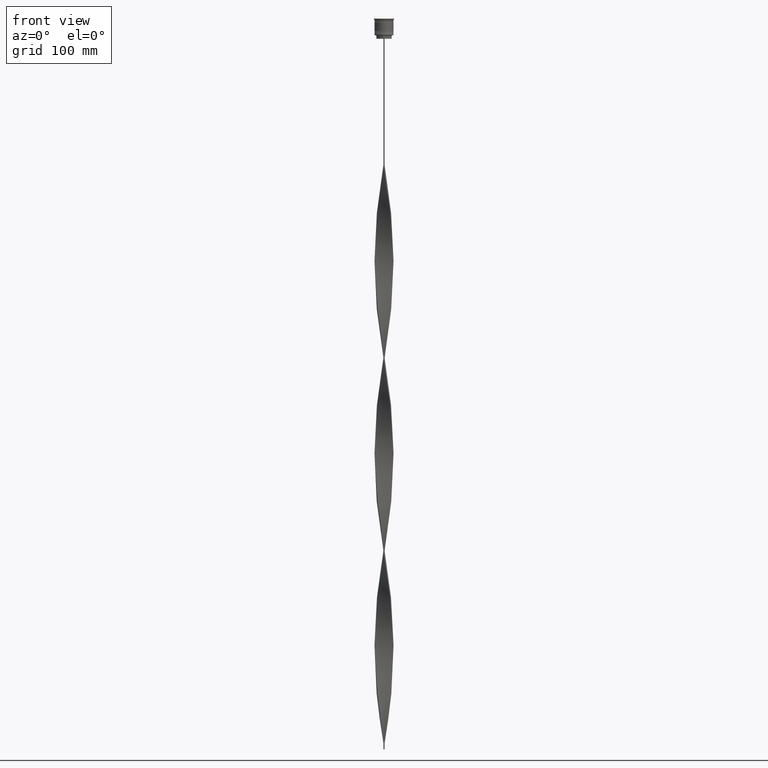
[diagram: clean part render]
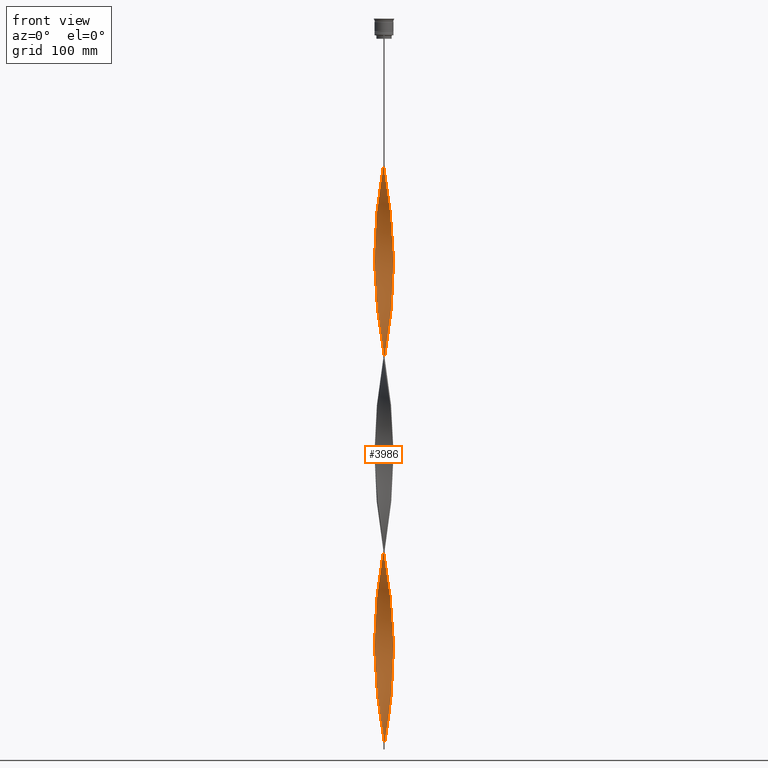
[diagram: same view with one face highlighted and labeled with its STEP entity id]
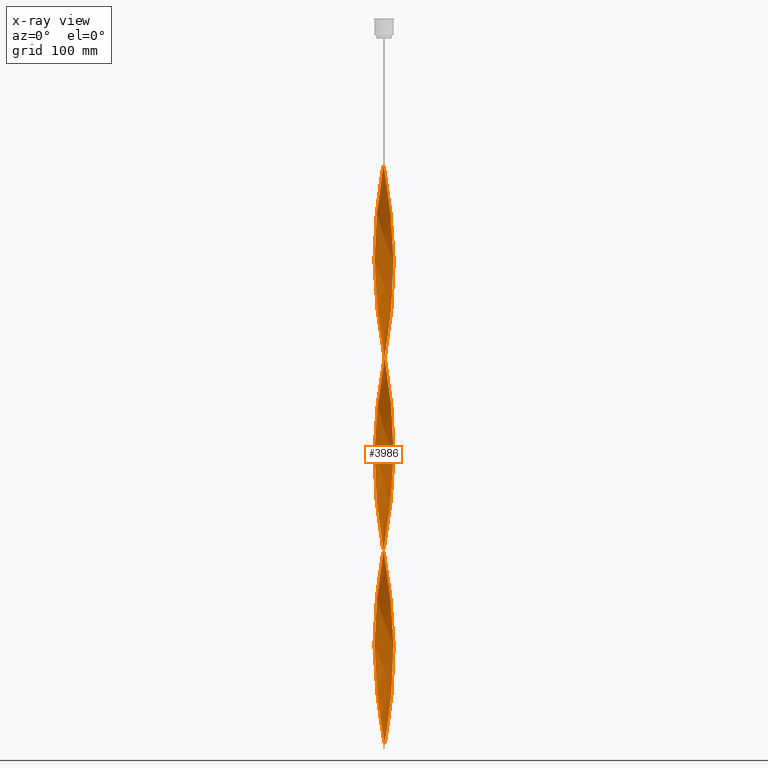
[diagram: x-ray of the same camera — body ghosted, the highlighted face saturated]
A machine part, front view. The second image highlights one B-rep face of the part: STEP entity #3986.
The next image is the same camera in x-ray: the body ghosted, the highlighted face saturated — about 0% of this face is hidden behind the body in this view.
In plain terms, the highlighted face is a freeform B-spline surface patch.
Its self-contained STEP definition (entity closure, byte-faithful):
#4 = CARTESIAN_POINT ( 'NONE',  ( 5.106790515527258378, -6.178243328853338490, -317.4000000000000341 ) ) ;
#14 = CARTESIAN_POINT ( 'NONE',  ( -5.111892533718799925, -6.174022572335634784, -246.1200000000000045 ) ) ;
#20 = CARTESIAN_POINT ( 'NONE',  ( -3.409884664421550138, -7.254149610763675149, -427.5600000000000023 ) ) ;
#26 = CARTESIAN_POINT ( 'NONE',  ( -5.111892533718799925, -6.174022572335634784, -570.1200000000000045 ) ) ;
#34 = CARTESIAN_POINT ( 'NONE',  ( -0.5066085178571934078, -7.999584227297972916, -278.5199999999999818 ) ) ;
#38 = CARTESIAN_POINT ( 'NONE',  ( 6.190458785190118718, -5.116887524214525307, -171.6000000000000512 ) ) ;
#39 = CARTESIAN_POINT ( 'NONE',  ( 1.003317338029196426, 7.968542666373180872, -281.7599999999999909 ) ) ;
#45 = CARTESIAN_POINT ( 'NONE',  ( 0.5000000000000025535, -7.999999999999996447, -609.0000000000000000 ) ) ;
#58 = CARTESIAN_POINT ( 'NONE',  ( -6.486710006526618777, -4.708778322582980458, -233.1599999999999966 ) ) ;
#64 = CARTESIAN_POINT ( 'NONE',  ( -7.762960627548706860, -1.996607696852001901, -382.2000000000000455 ) ) ;
#71 = CARTESIAN_POINT ( 'NONE',  ( -0.003317338029196073915, -8.031457333626823569, -605.7600000000001046 ) ) ;
#82 = CARTESIAN_POINT ( 'NONE',  ( 7.888576536432219122, -1.508203612066588484, -353.0400000000000205 ) ) ;
#87 = CARTESIAN_POINT ( 'NONE',  ( 5.111892533718807030, -6.174022572335639225, -161.8799999999999955 ) ) ;
#90 = CARTESIAN_POINT ( 'NONE',  ( 3.415876052791792628, -7.251330277401769386, -472.9200000000000159 ) ) ;
#94 = CARTESIAN_POINT ( 'NONE',  ( -3.872091084340837153, -7.036421572160659110, -579.8400000000001455 ) ) ;
#99 = CARTESIAN_POINT ( 'NONE',  ( 1.009899697685191944, 7.967711120969122263, -437.2800000000000864 ) ) ;
#104 = CARTESIAN_POINT ( 'NONE',  ( -7.764607348536651799, 1.990194142050141890, -356.2800000000000296 ) ) ;
#112 = CARTESIAN_POINT ( 'NONE',  ( -7.762960627548698866, 1.996607696852001457, -511.8000000000000114 ) ) ;
#119 = CARTESIAN_POINT ( 'NONE',  ( -1.505227516754522377, -7.873010232611473036, -596.0399999999999636 ) ) ;
#126 = CARTESIAN_POINT ( 'NONE',  ( -6.486710006526627659, 4.708778322582980458, -336.8400000000000318 ) ) ;
#141 = CARTESIAN_POINT ( 'NONE',  ( -4.297773521152310039, -6.766028581145813625, -576.6000000000000227 ) ) ;
#146 = CARTESIAN_POINT ( 'NONE',  ( -1.505227516754525485, 7.873010232611480141, -297.9599999999999795 ) ) ;
#147 = CARTESIAN_POINT ( 'NONE',  ( 2.473810677883154785, 7.624320345446625069, -596.0399999999999636 ) ) ;
#161 = CARTESIAN_POINT ( 'NONE',  ( -5.845393947331967155, -5.484648539377411147, -563.6399999999999864 ) ) ;
#165 = CARTESIAN_POINT ( 'NONE',  ( 1.505227516754523709, -7.873010232611480141, -459.9600000000000364 ) ) ;
#166 = CARTESIAN_POINT ( 'NONE',  ( 5.495492638774149619, 5.856951302834855433, -573.3600000000001273 ) ) ;
#173 = CARTESIAN_POINT ( 'NONE',  ( -7.952818567661513960, -1.001337520448642771, -207.2400000000000091 ) ) ;
#177 = CARTESIAN_POINT ( 'NONE',  ( -8.015817384569137616, -0.5009885865355725443, -528.0000000000000000 ) ) ;
#186 = CARTESIAN_POINT ( 'NONE',  ( -4.297773521152315368, 6.766028581145817178, -317.4000000000000341 ) ) ;
#198 = CARTESIAN_POINT ( 'NONE',  ( -7.639394946319396418, -2.478701829738567675, -216.9600000000000080 ) ) ;
#210 = CARTESIAN_POINT ( 'NONE',  ( 7.268492320028115294, -3.416626596555745188, -508.5600000000001160 ) ) ;
#216 = CARTESIAN_POINT ( 'NONE',  ( 5.106790515527261931, 6.178243328853344707, -252.6000000000000512 ) ) ;
#221 = CARTESIAN_POINT ( 'NONE',  ( -5.106790515527257490, 6.178243328853340266, -155.4000000000000057 ) ) ;
#228 = CARTESIAN_POINT ( 'NONE',  ( 4.297773521152313592, -6.766028581145818954, -479.4000000000000341 ) ) ;
#236 = CARTESIAN_POINT ( 'NONE',  ( 2.959661021242744994, -7.466238982642876998, -145.6800000000000352 ) ) ;
#241 = CARTESIAN_POINT ( 'NONE',  ( -7.762960627548698866, 1.996607696852001457, -187.8000000000000114 ) ) ;
#248 = CARTESIAN_POINT ( 'NONE',  ( 6.482817937080661785, 4.714135296601625669, -563.6399999999999864 ) ) ;
#253 = LINE ( 'NONE', #3938, #3803 ) ;
#256 = CARTESIAN_POINT ( 'NONE',  ( 0.003317338029198459159, -8.031457333626830675, -126.2400000000000233 ) ) ;
#260 = CARTESIAN_POINT ( 'NONE',  ( 0.4999999999999972800, 8.000000000000003553, -609.0000000000000000 ) ) ;
#266 = CARTESIAN_POINT ( 'NONE',  ( 2.959661021242737888, 7.466238982642870781, -424.3200000000000500 ) ) ;
#278 = CARTESIAN_POINT ( 'NONE',  ( 0.4999999999999972800, 8.000000000000003553, -609.0000000000000000 ) ) ;
#284 = CARTESIAN_POINT ( 'NONE',  ( 2.000555335823854808, -7.778309344253831803, -139.1999999999999886 ) ) ;
#291 = CARTESIAN_POINT ( 'NONE',  ( -4.723455957963780705, -6.495635590130970805, -249.3599999999999852 ) ) ;
#302 = CARTESIAN_POINT ( 'NONE',  ( -2.953492255452158766, 7.468681369799075043, -139.1999999999999602 ) ) ;
#309 = CARTESIAN_POINT ( 'NONE',  ( -8.015400789812524351, -0.5076101705763139682, -372.4800000000000750 ) ) ;
#314 = CARTESIAN_POINT ( 'NONE',  ( 3.415876052791789075, 7.251330277401763169, -421.0799999999999841 ) ) ;
#324 = CARTESIAN_POINT ( 'NONE',  ( -7.952818567661513960, -1.001337520448642771, -207.2400000000000091 ) ) ;
#329 = CARTESIAN_POINT ( 'NONE',  ( 6.482817937080661785, 4.714135296601625669, -239.6400000000000148 ) ) ;
#330 = CARTESIAN_POINT ( 'NONE',  ( -7.888576536432226227, -1.508203612066594035, -378.9600000000000932 ) ) ;
#338 = CARTESIAN_POINT ( 'NONE',  ( -1.009899697685191278, -7.967711120969122263, -275.2799999999999727 ) ) ;
#348 = CARTESIAN_POINT ( 'NONE',  ( -3.415876052791788187, -7.251330277401763169, -259.0799999999999841 ) ) ;
#355 = CARTESIAN_POINT ( 'NONE',  ( 5.845393947331972484, -5.484648539377413812, -168.3600000000000136 ) ) ;
#357 = CARTESIAN_POINT ( 'NONE',  ( -4.292182732835656545, -6.769576603300054174, -421.0799999999999841 ) ) ;
#360 = EDGE_CURVE ( 'NONE', #1887, #660, #253, .T. ) ;
#363 = CARTESIAN_POINT ( 'NONE',  ( 7.637344718665181276, -2.485011781637411321, -346.5600000000000023 ) ) ;
#371 = CARTESIAN_POINT ( 'NONE',  ( 7.637344718665181276, -2.485011781637410877, -346.5599999999999454 ) ) ;
#375 = CARTESIAN_POINT ( 'NONE',  ( 4.292182732835655656, 6.769576603300054174, -259.0799999999999841 ) ) ;
#377 = CARTESIAN_POINT ( 'NONE',  ( 3.409884664421549250, 7.254149610763675149, -265.5600000000000023 ) ) ;
#385 = CARTESIAN_POINT ( 'NONE',  ( -7.637344718665181276, 2.485011781637411765, -508.5600000000001160 ) ) ;
#396 = CARTESIAN_POINT ( 'NONE',  ( 1.994129100314148140, -7.779959321094161773, -294.7199999999999136 ) ) ;
#400 = CARTESIAN_POINT ( 'NONE',  ( 8.015817384569144721, -0.5009885865355698797, -204.0000000000000284 ) ) ;
#401 = CARTESIAN_POINT ( 'NONE',  ( 4.292182732835655656, 6.769576603300054174, -259.0799999999999841 ) ) ;
#408 = CARTESIAN_POINT ( 'NONE',  ( -5.840861161140213476, 5.489475466406945614, -485.8800000000000523 ) ) ;
#424 = CARTESIAN_POINT ( 'NONE',  ( 1.003317338029197980, -7.968542666373174654, -288.2400000000001796 ) ) ;
#428 = CARTESIAN_POINT ( 'NONE',  ( 1.003317338029196426, 7.968542666373180872, -605.7600000000001046 ) ) ;
#434 = CARTESIAN_POINT ( 'NONE',  ( -7.889819750753890304, -1.501686454361715439, -534.4800000000000182 ) ) ;
#442 = CARTESIAN_POINT ( 'NONE',  ( 0.003317338029197050130, 8.031457333626821793, -443.7599999999999909 ) ) ;
#446 = CARTESIAN_POINT ( 'NONE',  ( -7.952818567661520177, 1.001337520448641660, -362.7600000000000477 ) ) ;
#448 = CARTESIAN_POINT ( 'NONE',  ( 2.480108178533299679, -7.622274163448352624, -466.4399999999999977 ) ) ;
#457 = CARTESIAN_POINT ( 'NONE',  ( -7.764607348536642917, -1.990194142050142334, -537.7200000000000273 ) ) ;
#462 = CARTESIAN_POINT ( 'NONE',  ( -7.451506065510695720, -2.953820806287572598, -388.6800000000000068 ) ) ;
#476 = CARTESIAN_POINT ( 'NONE',  ( -1.498723219171672616, 7.874250993733667769, -453.4800000000000750 ) ) ;
#482 = CARTESIAN_POINT ( 'NONE',  ( -5.106790515527257490, -6.178243328853349148, -414.6000000000000227 ) ) ;
#483 = CARTESIAN_POINT ( 'NONE',  ( 6.486710006526624994, -4.708778322582981346, -498.8400000000000318 ) ) ;
#494 = CARTESIAN_POINT ( 'NONE',  ( -8.015400789812517246, 0.5076101705763133021, -521.5200000000002092 ) ) ;
#498 = CARTESIAN_POINT ( 'NONE',  ( -8.015817384569144721, 0.5009885865355727663, -365.9999999999999432 ) ) ;
#500 = CARTESIAN_POINT ( 'NONE',  ( 7.639394946319403523, -2.478701829738568563, -515.0400000000001910 ) ) ;
#510 = CARTESIAN_POINT ( 'NONE',  ( -7.265667412356201282, 3.422629830937727213, -178.0800000000000125 ) ) ;
#513 = CARTESIAN_POINT ( 'NONE',  ( -2.473810677883152565, 7.624320345446617964, -459.9600000000000364 ) ) ;
#518 = CARTESIAN_POINT ( 'NONE',  ( -7.453943633173757632, 2.947664213147157763, -349.8000000000000114 ) ) ;
#524 = CARTESIAN_POINT ( 'NONE',  ( 6.482817937080661785, 4.714135296601625669, -239.6400000000000148 ) ) ;
#527 = CARTESIAN_POINT ( 'NONE',  ( -3.409884664421547917, 7.254149610763668043, -142.4399999999999977 ) ) ;
#541 = CARTESIAN_POINT ( 'NONE',  ( -7.762960627548698866, 1.996607696852001457, -187.8000000000000114 ) ) ;
#549 = CARTESIAN_POINT ( 'NONE',  ( 7.025726773945623727, -3.858647858753592175, -181.3200000000000216 ) ) ;
#556 = CARTESIAN_POINT ( 'NONE',  ( -5.845393947331967155, -5.484648539377411147, -239.6400000000000148 ) ) ;
#567 = CARTESIAN_POINT ( 'NONE',  ( 6.782961227863134823, -4.300669120951440050, -502.0800000000000409 ) ) ;
#575 = CARTESIAN_POINT ( 'NONE',  ( 8.015609087190831872, 0.003310792020371779686, -207.2400000000000091 ) ) ;
#581 = CARTESIAN_POINT ( 'NONE',  ( -1.498723219171672616, 7.874250993733667769, -129.4800000000000182 ) ) ;
#586 = CARTESIAN_POINT ( 'NONE',  ( 6.186229683506283550, 5.121999629979047342, -566.8799999999999955 ) ) ;
#598 = CARTESIAN_POINT ( 'NONE',  ( 4.297773521152304710, 6.766028581145815401, -414.6000000000000227 ) ) ;
#610 = CARTESIAN_POINT ( 'NONE',  ( 6.779406190655039133, 4.306270963224203108, -560.3999999999999773 ) ) ;
#626 = CARTESIAN_POINT ( 'NONE',  ( 3.409884664421550582, -7.254149610763668043, -304.4400000000000546 ) ) ;
#637 = CARTESIAN_POINT ( 'NONE',  ( 7.451506065510694832, 2.953820806287573930, -550.6800000000000637 ) ) ;
#642 = CARTESIAN_POINT ( 'NONE',  ( -1.009899697685193942, 7.967711120969127592, -294.7199999999999704 ) ) ;
#647 = CARTESIAN_POINT ( 'NONE',  ( -1.003317338029197980, 7.968542666373173766, -450.2400000000000659 ) ) ;
#659 = CARTESIAN_POINT ( 'NONE',  ( -5.845393947331967155, -5.484648539377411147, -239.6400000000000148 ) ) ;
#660 = VERTEX_POINT ( 'NONE', #2919 ) ;
#665 = CARTESIAN_POINT ( 'NONE',  ( -6.486710006526627659, 4.708778322582980458, -336.8400000000000318 ) ) ;
#669 = CARTESIAN_POINT ( 'NONE',  ( 7.022536801505617099, -3.864450397080961608, -336.8400000000000318 ) ) ;
#677 = CARTESIAN_POINT ( 'NONE',  ( -1.505227516754522377, -7.873010232611473036, -272.0400000000000205 ) ) ;
#682 = CARTESIAN_POINT ( 'NONE',  ( 5.495492638774148730, 5.856951302834855433, -249.3600000000000136 ) ) ;
#683 = CARTESIAN_POINT ( 'NONE',  ( 1.505227516754523709, -7.873010232611480141, -459.9600000000000364 ) ) ;
#691 = CARTESIAN_POINT ( 'NONE',  ( 4.292182732835652992, -6.769576603300047957, -310.9199999999999591 ) ) ;
#692 = ORIENTED_EDGE ( 'NONE', *, *, #2154, .F. ) ;
#702 = CARTESIAN_POINT ( 'NONE',  ( -2.480108178533294794, -7.622274163448348183, -265.5600000000000023 ) ) ;
#710 = CARTESIAN_POINT ( 'NONE',  ( 8.015400789812524351, 0.5076101705763151895, -210.4800000000000182 ) ) ;
#712 = CARTESIAN_POINT ( 'NONE',  ( -6.779406190655036468, -4.306270963224207549, -398.4000000000000909 ) ) ;
#718 = CARTESIAN_POINT ( 'NONE',  ( -2.480108178533294794, -7.622274163448348183, -589.5600000000000591 ) ) ;
#727 = CARTESIAN_POINT ( 'NONE',  ( -7.025726773945617509, -3.858647858753589510, -226.6800000000000068 ) ) ;
#731 = CARTESIAN_POINT ( 'NONE',  ( 1.505227516754523709, -7.873010232611480141, -135.9600000000000080 ) ) ;
#733 = CARTESIAN_POINT ( 'NONE',  ( -5.845393947331973372, 5.484648539377412924, -330.3600000000000136 ) ) ;
#740 = CARTESIAN_POINT ( 'NONE',  ( -1.505227516754522377, -7.873010232611473036, -596.0399999999999636 ) ) ;
#752 = CARTESIAN_POINT ( 'NONE',  ( -0.003317338029196073481, -8.031457333626821793, -281.7600000000000477 ) ) ;
#757 = CARTESIAN_POINT ( 'NONE',  ( 7.268492320028115294, -3.416626596555745188, -184.5600000000000307 ) ) ;
#780 = CARTESIAN_POINT ( 'NONE',  ( 5.500329109473822697, 5.852409554540299652, -404.8799999999999955 ) ) ;
#786 = CARTESIAN_POINT ( 'NONE',  ( 5.106790515527261931, 6.178243328853344707, -576.6000000000000227 ) ) ;
#789 = CARTESIAN_POINT ( 'NONE',  ( 0.5000000000000025535, -7.999999999999996447, -609.0000000000000000 ) ) ;
#793 = CARTESIAN_POINT ( 'NONE',  ( -4.718088392280368026, 6.499535354871833093, -476.1600000000000250 ) ) ;
#802 = CARTESIAN_POINT ( 'NONE',  ( -3.415876052791788187, -7.251330277401763169, -583.0800000000000409 ) ) ;
#806 = CARTESIAN_POINT ( 'NONE',  ( -6.782961227863133935, 4.300669120951440938, -340.0800000000000978 ) ) ;
#807 = CARTESIAN_POINT ( 'NONE',  ( 7.888576536432224451, 1.508203612066593147, -540.9600000000001501 ) ) ;
#811 = CARTESIAN_POINT ( 'NONE',  ( -6.782961227863126830, -4.300669120951438273, -553.9200000000000728 ) ) ;
#817 = CARTESIAN_POINT ( 'NONE',  ( -7.265667412356201282, 3.422629830937727213, -502.0800000000000409 ) ) ;
#822 = CARTESIAN_POINT ( 'NONE',  ( -3.409884664421550138, -7.254149610763675149, -427.5600000000000023 ) ) ;
#825 = CARTESIAN_POINT ( 'NONE',  ( 7.951988663122374845, 1.007906891321455056, -537.7200000000000273 ) ) ;
#831 = CARTESIAN_POINT ( 'NONE',  ( -7.268492320028109077, -3.416626596555743411, -223.4399999999999977 ) ) ;
#834 = CARTESIAN_POINT ( 'NONE',  ( -7.451506065510689503, 2.953820806287569933, -505.3199999999999932 ) ) ;
#840 = CARTESIAN_POINT ( 'NONE',  ( 3.872091084340840705, -7.036421572160664439, -476.1600000000000250 ) ) ;
#842 = CARTESIAN_POINT ( 'NONE',  ( 1.498723219171672172, 7.874250993733674875, -602.5200000000000955 ) ) ;
#855 = CARTESIAN_POINT ( 'NONE',  ( -6.186229683506279997, 5.121999629979041124, -165.1200000000000045 ) ) ;
#857 = CARTESIAN_POINT ( 'NONE',  ( 2.480108178533295682, 7.622274163448348183, -427.5600000000000023 ) ) ;
#862 = CARTESIAN_POINT ( 'NONE',  ( -1.994129100314148584, -7.779959321094168878, -437.2800000000000864 ) ) ;
#873 = ORIENTED_EDGE ( 'NONE', *, *, #3188, .T. ) ;
#886 = CARTESIAN_POINT ( 'NONE',  ( -7.888576536432226227, -1.508203612066594035, -378.9600000000000932 ) ) ;
#898 = CARTESIAN_POINT ( 'NONE',  ( -6.486710006526618777, -4.708778322582980458, -233.1599999999999966 ) ) ;
#907 = CARTESIAN_POINT ( 'NONE',  ( -1.003317338029197980, 7.968542666373174654, -126.2400000000000233 ) ) ;
#932 = CARTESIAN_POINT ( 'NONE',  ( -6.779406190655033804, 4.306270963224198667, -171.6000000000000512 ) ) ;
#937 = CARTESIAN_POINT ( 'NONE',  ( 8.015400789812524351, 0.5076101705763153005, -210.4800000000000182 ) ) ;
#941 = CARTESIAN_POINT ( 'NONE',  ( 6.482817937080657344, -4.714135296601619451, -330.3600000000000136 ) ) ;
#946 = ORIENTED_EDGE ( 'NONE', *, *, #360, .T. ) ;
#951 = CARTESIAN_POINT ( 'NONE',  ( 5.111892533718807030, -6.174022572335639225, -485.8800000000000523 ) ) ;
#957 = CARTESIAN_POINT ( 'NONE',  ( 0.5000000000000025535, -7.999999999999996447, -609.0000000000000000 ) ) ;
#963 = CARTESIAN_POINT ( 'NONE',  ( 0.5066085178571909653, 7.999584227297972916, -440.5200000000000387 ) ) ;
#972 = CARTESIAN_POINT ( 'NONE',  ( 7.639394946319403523, -2.478701829738568119, -515.0400000000001910 ) ) ;
#979 = CARTESIAN_POINT ( 'NONE',  ( -3.872091084340841594, 7.036421572160663551, -314.1599999999999682 ) ) ;
#988 = CARTESIAN_POINT ( 'NONE',  ( 3.872091084340834488, 7.036421572160659110, -417.8400000000000887 ) ) ;
#1001 = CARTESIAN_POINT ( 'NONE',  ( 7.889819750753890304, 1.501686454361714329, -372.4800000000000750 ) ) ;
#1006 = CARTESIAN_POINT ( 'NONE',  ( -6.482817937080660009, -4.714135296601627445, -401.6399999999999864 ) ) ;
#1014 = CARTESIAN_POINT ( 'NONE',  ( -1.505227516754522377, -7.873010232611473036, -272.0400000000000205 ) ) ;
#1024 = CARTESIAN_POINT ( 'NONE',  ( -7.639394946319396418, -2.478701829738567231, -216.9600000000000080 ) ) ;
#1028 = CARTESIAN_POINT ( 'NONE',  ( 4.723455957963786922, -6.495635590130975245, -158.6399999999999864 ) ) ;
#1029 = CARTESIAN_POINT ( 'NONE',  ( -5.495492638774150507, -5.856951302834855433, -411.3600000000000705 ) ) ;
#1034 = CARTESIAN_POINT ( 'NONE',  ( -2.480108178533294794, -7.622274163448348183, -265.5600000000000023 ) ) ;
#1046 = CARTESIAN_POINT ( 'NONE',  ( 3.866277073390937513, -7.039617851728263709, -307.6800000000000637 ) ) ;
#1052 = CARTESIAN_POINT ( 'NONE',  ( 3.415876052791792628, -7.251330277401769386, -148.9199999999999875 ) ) ;
#1053 = CARTESIAN_POINT ( 'NONE',  ( -6.186229683506285326, -5.121999629979046453, -404.8799999999999955 ) ) ;
#1060 = CARTESIAN_POINT ( 'NONE',  ( -7.952818567661513960, -1.001337520448642771, -531.2400000000000091 ) ) ;
#1073 = CARTESIAN_POINT ( 'NONE',  ( 2.473810677883154341, -7.624320345446617964, -297.9599999999999795 ) ) ;
#1081 = CARTESIAN_POINT ( 'NONE',  ( 2.953492255452158766, 7.468681369799082148, -268.8000000000001251 ) ) ;
#1082 = CARTESIAN_POINT ( 'NONE',  ( 2.473810677883154785, 7.624320345446625069, -272.0400000000000205 ) ) ;
#1085 = CARTESIAN_POINT ( 'NONE',  ( -6.482817937080656456, 4.714135296601620340, -492.3600000000000136 ) ) ;
#1094 = CARTESIAN_POINT ( 'NONE',  ( 3.409884664421550582, -7.254149610763668043, -304.4400000000000546 ) ) ;
#1098 = CARTESIAN_POINT ( 'NONE',  ( 8.015609087190831872, 0.003310792020371779686, -207.2400000000000091 ) ) ;
#1114 = CARTESIAN_POINT ( 'NONE',  ( 4.723455957963781593, 6.495635590130970805, -411.3600000000000705 ) ) ;
#1117 = FACE_OUTER_BOUND ( 'NONE', #2331, .T. ) ;
#1126 = CARTESIAN_POINT ( 'NONE',  ( -2.959661021242740553, -7.466238982642869892, -586.3200000000000500 ) ) ;
#1137 = CARTESIAN_POINT ( 'NONE',  ( -6.190458785190113389, -5.116887524214521754, -560.3999999999999773 ) ) ;
#1143 = CARTESIAN_POINT ( 'NONE',  ( 1.994129100314147696, 7.779959321094169766, -275.2799999999999727 ) ) ;
#1145 = CARTESIAN_POINT ( 'NONE',  ( 3.866277073390939290, 7.039617851728271702, -586.3200000000000500 ) ) ;
#1152 = CARTESIAN_POINT ( 'NONE',  ( -7.022536801505616211, 3.864450397080963384, -498.8400000000000318 ) ) ;
#1162 = CARTESIAN_POINT ( 'NONE',  ( -7.639394946319396418, -2.478701829738567231, -540.9600000000001501 ) ) ;
#1166 = CARTESIAN_POINT ( 'NONE',  ( -4.718088392280368915, -6.499535354871840198, -417.8400000000001455 ) ) ;
#1167 = CARTESIAN_POINT ( 'NONE',  ( 4.723455957963786922, -6.495635590130975245, -482.6400000000000432 ) ) ;
#1174 = CARTESIAN_POINT ( 'NONE',  ( -7.889819750753890304, -1.501686454361715439, -210.4800000000000182 ) ) ;
#1177 = CARTESIAN_POINT ( 'NONE',  ( 4.297773521152304710, 6.766028581145815401, -414.6000000000000227 ) ) ;
#1182 = CARTESIAN_POINT ( 'NONE',  ( -5.845393947331973372, 5.484648539377412924, -330.3600000000000136 ) ) ;
#1183 = CARTESIAN_POINT ( 'NONE',  ( 7.451506065510694832, 2.953820806287573930, -550.6800000000000637 ) ) ;
#1196 = CARTESIAN_POINT ( 'NONE',  ( -2.480108178533294794, -7.622274163448348183, -589.5600000000000591 ) ) ;
#1205 = CARTESIAN_POINT ( 'NONE',  ( 2.000555335823854364, -7.778309344253831803, -463.2000000000000455 ) ) ;
#1226 = CARTESIAN_POINT ( 'NONE',  ( -2.480108178533302343, 7.622274163448351736, -304.4400000000000546 ) ) ;
#1238 = CARTESIAN_POINT ( 'NONE',  ( -7.025726773945617509, -3.858647858753589510, -226.6800000000000068 ) ) ;
#1246 = CARTESIAN_POINT ( 'NONE',  ( 7.453943633173757632, -2.947664213147156875, -511.8000000000000114 ) ) ;
#1253 = CARTESIAN_POINT ( 'NONE',  ( 3.872091084340840705, -7.036421572160664439, -152.1599999999999966 ) ) ;
#1272 = CARTESIAN_POINT ( 'NONE',  ( 3.866277073390938845, 7.039617851728270814, -586.3200000000000500 ) ) ;
#1279 = CARTESIAN_POINT ( 'NONE',  ( 6.779406190655039133, 4.306270963224203108, -236.4000000000000341 ) ) ;
#1286 = CARTESIAN_POINT ( 'NONE',  ( 6.779406190655033804, -4.306270963224200443, -333.6000000000000227 ) ) ;
#1296 = CARTESIAN_POINT ( 'NONE',  ( -5.840861161140213476, 5.489475466406945614, -161.8799999999999955 ) ) ;
#1299 = B_SPLINE_CURVE_WITH_KNOTS ( 'NONE', 3,
 ( #260, #2146, #3213, #789 ),
 .UNSPECIFIED., .F., .F.,
 ( 4, 4 ),
 ( 0.000000000000000000, 1.000000000000000000 ),
 .UNSPECIFIED. ) ;
#1302 = CARTESIAN_POINT ( 'NONE',  ( 7.639394946319403523, -2.478701829738568563, -191.0400000000000205 ) ) ;
#1308 = CARTESIAN_POINT ( 'NONE',  ( 6.186229683506279997, -5.121999629979041124, -327.1200000000000614 ) ) ;
#1316 = CARTESIAN_POINT ( 'NONE',  ( -7.451506065510689503, 2.953820806287569933, -181.3200000000000216 ) ) ;
#1323 = CARTESIAN_POINT ( 'NONE',  ( 6.190458785190118718, -5.116887524214525307, -171.6000000000000227 ) ) ;
#1328 = CARTESIAN_POINT ( 'NONE',  ( 7.889819750753890304, 1.501686454361714107, -372.4800000000000750 ) ) ;
#1339 = CARTESIAN_POINT ( 'NONE',  ( 8.015609087190831872, 0.003310792020371779686, -531.2400000000000091 ) ) ;
#1347 = CARTESIAN_POINT ( 'NONE',  ( 0.4999999999999972800, 8.000000000000003553, -285.0000000000000568 ) ) ;
#1354 = CARTESIAN_POINT ( 'NONE',  ( 6.486710006526618777, 4.708778322582979570, -395.1600000000000250 ) ) ;
#1365 = CARTESIAN_POINT ( 'NONE',  ( 7.022536801505617099, -3.864450397080961608, -336.8400000000000318 ) ) ;
#1369 = CARTESIAN_POINT ( 'NONE',  ( 7.639394946319403523, -2.478701829738568119, -191.0400000000000205 ) ) ;
#1370 = CARTESIAN_POINT ( 'NONE',  ( -0.4999999999999998890, -8.000000000000003553, -447.0000000000000000 ) ) ;
#1371 = ORIENTED_EDGE ( 'NONE', *, *, #4411, .F. ) ;
#1376 = CARTESIAN_POINT ( 'NONE',  ( 7.888576536432219122, -1.508203612066588484, -353.0400000000000205 ) ) ;
#1385 = CARTESIAN_POINT ( 'NONE',  ( 4.718088392280368915, -6.499535354871832205, -314.1599999999999682 ) ) ;
#1390 = CARTESIAN_POINT ( 'NONE',  ( 7.637344718665186605, 2.485011781637414874, -223.4399999999999977 ) ) ;
#1391 = CARTESIAN_POINT ( 'NONE',  ( -2.480108178533302343, 7.622274163448351736, -304.4400000000000546 ) ) ;
#1396 = CARTESIAN_POINT ( 'NONE',  ( -7.639394946319396418, -2.478701829738567675, -540.9600000000001501 ) ) ;
#1407 = CARTESIAN_POINT ( 'NONE',  ( 5.106790515527258378, -6.178243328853338490, -317.4000000000000341 ) ) ;
#1412 = CARTESIAN_POINT ( 'NONE',  ( 7.888576536432224451, 1.508203612066593147, -216.9600000000000080 ) ) ;
#1414 = CARTESIAN_POINT ( 'NONE',  ( -2.000555335823857028, 7.778309344253831803, -301.2000000000001023 ) ) ;
#1421 = CARTESIAN_POINT ( 'NONE',  ( -4.297773521152310039, -6.766028581145813625, -576.6000000000000227 ) ) ;
#1432 = CARTESIAN_POINT ( 'NONE',  ( 7.265667412356200394, -3.422629830937728102, -340.0800000000000978 ) ) ;
#1439 = CARTESIAN_POINT ( 'NONE',  ( 6.782961227863134823, -4.300669120951440050, -178.0800000000000125 ) ) ;
#1441 = CARTESIAN_POINT ( 'NONE',  ( -6.190458785190117830, 5.116887524214527083, -333.6000000000000227 ) ) ;
#1456 = CARTESIAN_POINT ( 'NONE',  ( -2.000555335823850367, -7.778309344253826474, -268.8000000000001251 ) ) ;
#1461 = CARTESIAN_POINT ( 'NONE',  ( 2.480108178533299679, -7.622274163448352624, -142.4399999999999977 ) ) ;
#1462 = CARTESIAN_POINT ( 'NONE',  ( 8.015609087190831872, 0.003310792020371779686, -531.2400000000000091 ) ) ;
#1466 = CARTESIAN_POINT ( 'NONE',  ( -2.953492255452158766, 7.468681369799075043, -463.2000000000000455 ) ) ;
#1474 = CARTESIAN_POINT ( 'NONE',  ( -7.022536801505616211, 3.864450397080963384, -498.8400000000000318 ) ) ;
#1477 = CARTESIAN_POINT ( 'NONE',  ( -8.015609087190831872, -0.003310792020374273351, -369.2400000000000091 ) ) ;
#1483 = CARTESIAN_POINT ( 'NONE',  ( -6.486710006526618777, -4.708778322582980458, -557.1600000000000819 ) ) ;
#1496 = CARTESIAN_POINT ( 'NONE',  ( -0.5066085178571934078, -7.999584227297972916, -602.5200000000000955 ) ) ;
#1499 = CARTESIAN_POINT ( 'NONE',  ( -5.500329109473828026, 5.852409554540304981, -327.1200000000001182 ) ) ;
#1500 = CARTESIAN_POINT ( 'NONE',  ( 6.186229683506284438, 5.121999629979047342, -566.8799999999999955 ) ) ;
#1515 = CARTESIAN_POINT ( 'NONE',  ( -1.994129100314146807, 7.779959321094164437, -456.7200000000000841 ) ) ;
#1520 = CARTESIAN_POINT ( 'NONE',  ( 0.5066085178571956282, -7.999584227297980021, -453.4800000000000750 ) ) ;
#1522 = CARTESIAN_POINT ( 'NONE',  ( 7.268492320028114406, -3.416626596555745188, -508.5600000000001160 ) ) ;
#1530 = CARTESIAN_POINT ( 'NONE',  ( -7.637344718665181276, 2.485011781637411765, -184.5600000000000307 ) ) ;
#1536 = CARTESIAN_POINT ( 'NONE',  ( -6.779406190655033804, 4.306270963224198667, -495.6000000000000227 ) ) ;
#1542 = CARTESIAN_POINT ( 'NONE',  ( -7.889819750753897409, 1.501686454361711220, -359.5200000000000955 ) ) ;
#1544 = CARTESIAN_POINT ( 'NONE',  ( 2.953492255452158766, 7.468681369799081260, -592.8000000000000682 ) ) ;
#1558 = CARTESIAN_POINT ( 'NONE',  ( -7.025726773945617509, -3.858647858753589510, -550.6800000000000637 ) ) ;
#1567 = CARTESIAN_POINT ( 'NONE',  ( -5.111892533718807030, 6.174022572335639225, -323.8799999999999955 ) ) ;
#1576 = CARTESIAN_POINT ( 'NONE',  ( 7.268492320028114406, -3.416626596555745188, -184.5600000000000307 ) ) ;
#1582 = CARTESIAN_POINT ( 'NONE',  ( -7.453943633173751415, -2.947664213147155987, -220.2000000000000171 ) ) ;
#1591 = CARTESIAN_POINT ( 'NONE',  ( 7.889819750753897409, -1.501686454361715661, -521.5200000000002092 ) ) ;
#1599 = CARTESIAN_POINT ( 'NONE',  ( 7.888576536432224451, 1.508203612066593147, -216.9600000000000080 ) ) ;
#1613 = CARTESIAN_POINT ( 'NONE',  ( 2.953492255452158766, 7.468681369799082148, -592.8000000000001819 ) ) ;
#1620 = CARTESIAN_POINT ( 'NONE',  ( 7.022536801505621540, 3.864450397080969601, -233.1599999999999966 ) ) ;
#1627 = CARTESIAN_POINT ( 'NONE',  ( -7.888576536432217345, 1.508203612066590704, -191.0400000000000205 ) ) ;
#1638 = CARTESIAN_POINT ( 'NONE',  ( 1.498723219171672172, 7.874250993733674875, -602.5200000000000955 ) ) ;
#1653 = CARTESIAN_POINT ( 'NONE',  ( 2.480108178533295682, 7.622274163448348183, -427.5600000000000023 ) ) ;
#1664 = CARTESIAN_POINT ( 'NONE',  ( -0.4999999999999998890, 7.999999999999996447, -123.0000000000000000 ) ) ;
#1675 = CARTESIAN_POINT ( 'NONE',  ( 8.015817384569135839, 0.5009885865355696577, -366.0000000000000000 ) ) ;
#1686 = CARTESIAN_POINT ( 'NONE',  ( -4.292182732835652992, 6.769576603300047957, -148.9199999999999875 ) ) ;
#1692 = CARTESIAN_POINT ( 'NONE',  ( -7.265667412356204835, -3.422629830937735207, -391.9200000000001296 ) ) ;
#1698 = CARTESIAN_POINT ( 'NONE',  ( 0.5000000000000025535, -7.999999999999996447, -285.0000000000000568 ) ) ;
#1709 = CARTESIAN_POINT ( 'NONE',  ( -5.500329109473821809, -5.852409554540300540, -242.8800000000000239 ) ) ;
#1717 = CARTESIAN_POINT ( 'NONE',  ( 3.866277073390939290, 7.039617851728271702, -262.3199999999999932 ) ) ;
#1724 = CARTESIAN_POINT ( 'NONE',  ( 5.840861161140213476, -5.489475466406945614, -323.8799999999999955 ) ) ;
#1735 = CARTESIAN_POINT ( 'NONE',  ( -8.015400789812517246, 0.5076101705763133021, -197.5200000000000387 ) ) ;
#1739 = CARTESIAN_POINT ( 'NONE',  ( 7.453943633173757632, -2.947664213147156875, -187.8000000000000114 ) ) ;
#1741 = CARTESIAN_POINT ( 'NONE',  ( 1.498723219171672172, 7.874250993733674875, -278.5199999999999818 ) ) ;
#1748 = CARTESIAN_POINT ( 'NONE',  ( -2.473810677883152565, 7.624320345446617964, -459.9600000000000364 ) ) ;
#1757 = CARTESIAN_POINT ( 'NONE',  ( 5.845393947331965379, 5.484648539377412035, -401.6399999999999864 ) ) ;
#1761 = CARTESIAN_POINT ( 'NONE',  ( 5.500329109473828026, -5.852409554540304981, -165.1200000000000330 ) ) ;
#1762 = CARTESIAN_POINT ( 'NONE',  ( -2.473810677883152120, -7.624320345446626845, -434.0400000000000205 ) ) ;
#1767 = CARTESIAN_POINT ( 'NONE',  ( -2.000555335823850367, -7.778309344253826474, -592.8000000000000682 ) ) ;
#1777 = CARTESIAN_POINT ( 'NONE',  ( 2.953492255452160986, -7.468681369799075043, -301.2000000000000455 ) ) ;
#1782 = CARTESIAN_POINT ( 'NONE',  ( 6.779406190655039133, 4.306270963224203108, -236.4000000000000341 ) ) ;
#1784 = CARTESIAN_POINT ( 'NONE',  ( -7.268492320028114406, 3.416626596555744744, -346.5600000000000023 ) ) ;
#1790 = CARTESIAN_POINT ( 'NONE',  ( -6.779406190655034692, 4.306270963224198667, -495.6000000000000227 ) ) ;
#1803 = CARTESIAN_POINT ( 'NONE',  ( -8.015817384569137616, -0.5009885865355725443, -204.0000000000000284 ) ) ;
#1809 = CARTESIAN_POINT ( 'NONE',  ( 7.764607348536651799, -1.990194142050141002, -518.2800000000000864 ) ) ;
#1822 = CARTESIAN_POINT ( 'NONE',  ( -4.292182732835652992, 6.769576603300047957, -472.9200000000000159 ) ) ;
#1826 = CARTESIAN_POINT ( 'NONE',  ( -4.723455957963788698, 6.495635590130974357, -320.6400000000001000 ) ) ;
#1829 = CARTESIAN_POINT ( 'NONE',  ( 2.959661021242744994, -7.466238982642876998, -469.6800000000001205 ) ) ;
#1833 = CARTESIAN_POINT ( 'NONE',  ( -3.409884664421547917, 7.254149610763668043, -466.4399999999999977 ) ) ;
#1839 = CARTESIAN_POINT ( 'NONE',  ( -2.959661021242740553, -7.466238982642869004, -586.3200000000000500 ) ) ;
#1843 = CARTESIAN_POINT ( 'NONE',  ( -6.779406190655036468, -4.306270963224208437, -398.4000000000000909 ) ) ;
#1861 = CARTESIAN_POINT ( 'NONE',  ( -3.866277073390937957, 7.039617851728262821, -469.6800000000001205 ) ) ;
#1867 = CARTESIAN_POINT ( 'NONE',  ( 0.003317338029198458726, -8.031457333626828898, -450.2400000000000659 ) ) ;
#1868 = CARTESIAN_POINT ( 'NONE',  ( 4.718088392280371579, 6.499535354871838422, -579.8400000000001455 ) ) ;
#1879 = CARTESIAN_POINT ( 'NONE',  ( -3.866277073390938401, 7.039617851728262821, -145.6800000000000352 ) ) ;
#1882 = CARTESIAN_POINT ( 'NONE',  ( -6.782961227863126830, -4.300669120951438273, -553.9200000000001864 ) ) ;
#1886 = CARTESIAN_POINT ( 'NONE',  ( -1.009899697685193942, 7.967711120969127592, -294.7199999999999136 ) ) ;
#1887 = VERTEX_POINT ( 'NONE', #2815 ) ;
#1888 = CARTESIAN_POINT ( 'NONE',  ( 7.637344718665187493, 2.485011781637414874, -547.4400000000001683 ) ) ;
#1902 = CARTESIAN_POINT ( 'NONE',  ( -0.003317338029196073481, -8.031457333626821793, -605.7599999999999909 ) ) ;
#1907 = CARTESIAN_POINT ( 'NONE',  ( -5.840861161140214364, -5.489475466406953608, -408.1200000000000614 ) ) ;
#1913 = CARTESIAN_POINT ( 'NONE',  ( 0.5066085178571956282, -7.999584227297980021, -129.4800000000000182 ) ) ;
#1918 = CARTESIAN_POINT ( 'NONE',  ( -4.292182732835652992, 6.769576603300047957, -148.9199999999999875 ) ) ;
#1933 = CARTESIAN_POINT ( 'NONE',  ( -7.888576536432217345, 1.508203612066590482, -191.0400000000000205 ) ) ;
#1941 = CARTESIAN_POINT ( 'NONE',  ( 7.265667412356205723, 3.422629830937732986, -229.9200000000000443 ) ) ;
#1946 = CARTESIAN_POINT ( 'NONE',  ( -5.500329109473821809, -5.852409554540300540, -242.8800000000000523 ) ) ;
#1952 = CARTESIAN_POINT ( 'NONE',  ( -1.994129100314146807, 7.779959321094164437, -132.7199999999999989 ) ) ;
#1960 = CARTESIAN_POINT ( 'NONE',  ( 7.637344718665187493, 2.485011781637414874, -223.4399999999999977 ) ) ;
#1965 = CARTESIAN_POINT ( 'NONE',  ( -5.840861161140213476, 5.489475466406945614, -161.8799999999999955 ) ) ;
#1972 = CARTESIAN_POINT ( 'NONE',  ( 2.473810677883154785, 7.624320345446625069, -596.0399999999999636 ) ) ;
#1982 = CARTESIAN_POINT ( 'NONE',  ( 7.762960627548698866, -1.996607696852002345, -349.8000000000000114 ) ) ;
#1992 = CARTESIAN_POINT ( 'NONE',  ( 5.840861161140217028, 5.489475466406951831, -570.1200000000000045 ) ) ;
#1998 = CARTESIAN_POINT ( 'NONE',  ( 1.505227516754523709, -7.873010232611480141, -135.9600000000000080 ) ) ;
#2008 = CARTESIAN_POINT ( 'NONE',  ( 7.265667412356200394, -3.422629830937728102, -340.0800000000000978 ) ) ;
#2014 = CARTESIAN_POINT ( 'NONE',  ( 0.4999999999999972800, 8.000000000000003553, -609.0000000000000000 ) ) ;
#2020 = CARTESIAN_POINT ( 'NONE',  ( 7.025726773945623727, -3.858647858753592175, -505.3199999999999932 ) ) ;
#2026 = CARTESIAN_POINT ( 'NONE',  ( -4.723455957963788698, 6.495635590130974357, -320.6400000000001000 ) ) ;
#2031 = CARTESIAN_POINT ( 'NONE',  ( 1.498723219171672616, -7.874250993733667769, -291.4800000000000182 ) ) ;
#2040 = CARTESIAN_POINT ( 'NONE',  ( 6.782961227863125941, 4.300669120951440050, -391.9200000000000728 ) ) ;
#2046 = CARTESIAN_POINT ( 'NONE',  ( -4.718088392280368915, -6.499535354871840198, -417.8400000000000887 ) ) ;
#2051 = CARTESIAN_POINT ( 'NONE',  ( 5.500329109473822697, 5.852409554540299652, -404.8799999999999955 ) ) ;
#2060 = CARTESIAN_POINT ( 'NONE',  ( 8.015400789812517246, -0.5076101705763091942, -359.5200000000000955 ) ) ;
#2068 = CARTESIAN_POINT ( 'NONE',  ( 5.106790515527261931, 6.178243328853344707, -252.6000000000000512 ) ) ;
#2069 = CARTESIAN_POINT ( 'NONE',  ( -6.782961227863133047, 4.300669120951440938, -340.0800000000000978 ) ) ;
#2078 = CARTESIAN_POINT ( 'NONE',  ( 7.268492320028107301, 3.416626596555745632, -385.4399999999999977 ) ) ;
#2092 = CARTESIAN_POINT ( 'NONE',  ( -1.009899697685191056, -7.967711120969122263, -275.2799999999999727 ) ) ;
#2098 = CARTESIAN_POINT ( 'NONE',  ( 3.409884664421549250, 7.254149610763675149, -265.5600000000000023 ) ) ;
#2100 = CARTESIAN_POINT ( 'NONE',  ( -3.866277073390937069, -7.039617851728272591, -424.3200000000000500 ) ) ;
#2106 = CARTESIAN_POINT ( 'NONE',  ( -3.866277073390938401, 7.039617851728262821, -469.6800000000001205 ) ) ;
#2107 = VERTEX_POINT ( 'NONE', #957 ) ;
#2115 = CARTESIAN_POINT ( 'NONE',  ( -3.872091084340837153, -7.036421572160659110, -255.8399999999999750 ) ) ;
#2119 = CARTESIAN_POINT ( 'NONE',  ( 7.265667412356205723, 3.422629830937732986, -229.9200000000000443 ) ) ;
#2120 = CARTESIAN_POINT ( 'NONE',  ( -7.639394946319404411, 2.478701829738566342, -353.0400000000000205 ) ) ;
#2127 = CARTESIAN_POINT ( 'NONE',  ( -5.495492638774146954, 5.856951302834847439, -482.6400000000000432 ) ) ;
#2137 = CARTESIAN_POINT ( 'NONE',  ( 6.779406190655033804, -4.306270963224200443, -333.6000000000000227 ) ) ;
#2146 = CARTESIAN_POINT ( 'NONE',  ( 0.4999999999999990563, 2.666666666666670515, -609.0000000000000000 ) ) ;
#2154 = EDGE_CURVE ( 'NONE', #1887, #4038, #2563, .T. ) ;
#2166 = CARTESIAN_POINT ( 'NONE',  ( 3.872091084340834488, 7.036421572160659110, -417.8400000000001455 ) ) ;
#2170 = CARTESIAN_POINT ( 'NONE',  ( 7.762960627548705084, 1.996607696852005009, -220.2000000000000171 ) ) ;
#2172 = CARTESIAN_POINT ( 'NONE',  ( 4.297773521152313592, -6.766028581145818954, -479.4000000000000341 ) ) ;
#2176 = CARTESIAN_POINT ( 'NONE',  ( -6.190458785190113389, -5.116887524214520866, -560.3999999999999773 ) ) ;
#2183 = CARTESIAN_POINT ( 'NONE',  ( -4.718088392280368026, 6.499535354871833093, -476.1600000000000250 ) ) ;
#2188 = CARTESIAN_POINT ( 'NONE',  ( -7.268492320028115294, 3.416626596555744744, -346.5599999999999454 ) ) ;
#2190 = CARTESIAN_POINT ( 'NONE',  ( 6.482817937080661785, 4.714135296601625669, -563.6399999999999864 ) ) ;
#2194 = CARTESIAN_POINT ( 'NONE',  ( -5.106790515527257490, 6.178243328853340266, -479.4000000000000341 ) ) ;
#2203 = CARTESIAN_POINT ( 'NONE',  ( -7.637344718665181276, 2.485011781637411321, -508.5600000000001160 ) ) ;
#2210 = CARTESIAN_POINT ( 'NONE',  ( -2.953492255452155657, -7.468681369799083924, -430.8000000000000682 ) ) ;
#2211 = CARTESIAN_POINT ( 'NONE',  ( 7.022536801505621540, 3.864450397080969601, -557.1600000000000819 ) ) ;
#2225 = CARTESIAN_POINT ( 'NONE',  ( 5.111892533718798148, 6.174022572335636561, -408.1200000000000614 ) ) ;
#2231 = CARTESIAN_POINT ( 'NONE',  ( -7.637344718665184828, -2.485011781637417094, -385.4399999999999977 ) ) ;
#2232 = CARTESIAN_POINT ( 'NONE',  ( 3.409884664421549250, 7.254149610763675149, -589.5600000000000591 ) ) ;
#2246 = CARTESIAN_POINT ( 'NONE',  ( -1.009899697685191056, -7.967711120969122263, -599.2799999999999727 ) ) ;
#2251 = CARTESIAN_POINT ( 'NONE',  ( -7.639394946319404411, 2.478701829738565898, -353.0400000000000205 ) ) ;
#2256 = CARTESIAN_POINT ( 'NONE',  ( 7.451506065510694832, 2.953820806287573930, -226.6800000000000068 ) ) ;
#2270 = CARTESIAN_POINT ( 'NONE',  ( -6.186229683506279109, 5.121999629979041124, -165.1200000000000330 ) ) ;
#2276 = CARTESIAN_POINT ( 'NONE',  ( 5.840861161140217028, 5.489475466406951831, -246.1200000000000045 ) ) ;
#2282 = CARTESIAN_POINT ( 'NONE',  ( -6.190458785190113389, -5.116887524214520866, -236.4000000000000341 ) ) ;
#2296 = CARTESIAN_POINT ( 'NONE',  ( -3.409884664421547917, 7.254149610763668043, -142.4399999999999977 ) ) ;
#2305 = CARTESIAN_POINT ( 'NONE',  ( 6.486710006526624994, -4.708778322582981346, -174.8400000000000034 ) ) ;
#2311 = CARTESIAN_POINT ( 'NONE',  ( -1.003317338029197980, 7.968542666373173766, -126.2400000000000233 ) ) ;
#2320 = CARTESIAN_POINT ( 'NONE',  ( 4.723455957963786922, -6.495635590130975245, -482.6400000000001000 ) ) ;
#2330 = CARTESIAN_POINT ( 'NONE',  ( 4.718088392280368915, -6.499535354871832205, -314.1599999999999682 ) ) ;
#2331 = EDGE_LOOP ( 'NONE', ( #946, #873, #1371, #692 ) ) ;
#2339 = CARTESIAN_POINT ( 'NONE',  ( 5.500329109473828026, -5.852409554540304981, -489.1200000000001182 ) ) ;
#2347 = CARTESIAN_POINT ( 'NONE',  ( -0.4999999999999998890, -8.000000000000003553, -123.0000000000000000 ) ) ;
#2353 = CARTESIAN_POINT ( 'NONE',  ( -3.415876052791788187, -7.251330277401763169, -259.0799999999999841 ) ) ;
#2363 = CARTESIAN_POINT ( 'NONE',  ( 7.952818567661520177, -1.001337520448642326, -524.7599999999999909 ) ) ;
#2369 = CARTESIAN_POINT ( 'NONE',  ( -8.015817384569142945, 0.5009885865355726553, -366.0000000000000000 ) ) ;
#2378 = CARTESIAN_POINT ( 'NONE',  ( 7.453943633173752303, 2.947664213147153767, -382.2000000000000455 ) ) ;
#2390 = CARTESIAN_POINT ( 'NONE',  ( -8.015609087190826543, 0.003310792020370478643, -200.7599999999999909 ) ) ;
#2395 = CARTESIAN_POINT ( 'NONE',  ( -5.106790515527257490, -6.178243328853349148, -414.6000000000000227 ) ) ;
#2400 = CARTESIAN_POINT ( 'NONE',  ( 1.003317338029197758, -7.968542666373173766, -288.2400000000001228 ) ) ;
#2410 = CARTESIAN_POINT ( 'NONE',  ( -6.190458785190113389, -5.116887524214521754, -236.4000000000000341 ) ) ;
#2415 = CARTESIAN_POINT ( 'NONE',  ( 1.009899697685192832, -7.967711120969127592, -456.7200000000000841 ) ) ;
#2420 = CARTESIAN_POINT ( 'NONE',  ( 8.015400789812517246, -0.5076101705763091942, -359.5200000000000387 ) ) ;
#2430 = CARTESIAN_POINT ( 'NONE',  ( -7.764607348536642917, -1.990194142050142334, -213.7200000000000273 ) ) ;
#2438 = CARTESIAN_POINT ( 'NONE',  ( 7.025726773945623727, -3.858647858753592175, -181.3200000000000216 ) ) ;
#2439 = CARTESIAN_POINT ( 'NONE',  ( -8.015609087190831872, -0.003310792020374273351, -369.2400000000000091 ) ) ;
#2447 = CARTESIAN_POINT ( 'NONE',  ( -7.453943633173751415, -2.947664213147155987, -544.2000000000000455 ) ) ;
#2459 = CARTESIAN_POINT ( 'NONE',  ( 0.5000000000000025535, -7.999999999999996447, -285.0000000000000568 ) ) ;
#2465 = CARTESIAN_POINT ( 'NONE',  ( 7.951988663122374845, 1.007906891321455056, -213.7200000000000273 ) ) ;
#2466 = CARTESIAN_POINT ( 'NONE',  ( -0.5066085178571957393, 7.999584227297980021, -291.4800000000000182 ) ) ;
#2471 = CARTESIAN_POINT ( 'NONE',  ( -8.015609087190826543, 0.003310792020370478643, -524.7599999999999909 ) ) ;
#2480 = CARTESIAN_POINT ( 'NONE',  ( -7.889819750753890304, -1.501686454361715661, -210.4800000000000182 ) ) ;
#2484 = CARTESIAN_POINT ( 'NONE',  ( 5.840861161140217028, 5.489475466406951831, -246.1200000000000045 ) ) ;
#2485 = CARTESIAN_POINT ( 'NONE',  ( 6.779406190655039133, 4.306270963224203108, -560.3999999999999773 ) ) ;
#2501 = CARTESIAN_POINT ( 'NONE',  ( -0.4999999999999998890, 7.999999999999996447, -447.0000000000000000 ) ) ;
#2506 = CARTESIAN_POINT ( 'NONE',  ( 0.003317338029198458726, -8.031457333626828898, -126.2400000000000233 ) ) ;
#2523 = CARTESIAN_POINT ( 'NONE',  ( -5.500329109473821809, -5.852409554540300540, -566.8799999999999955 ) ) ;
#2527 = DIRECTION ( 'NONE',  ( 0.000000000000000000, 1.000000000000000000, 0.000000000000000000 ) ) ;
#2529 = CARTESIAN_POINT ( 'NONE',  ( 1.003317338029196648, 7.968542666373180872, -281.7600000000000477 ) ) ;
#2531 = CARTESIAN_POINT ( 'NONE',  ( 0.4999999999999972800, 8.000000000000003553, -609.0000000000000000 ) ) ;
#2536 = CARTESIAN_POINT ( 'NONE',  ( -4.292182732835652992, 6.769576603300047957, -472.9200000000000159 ) ) ;
#2545 = CARTESIAN_POINT ( 'NONE',  ( -1.003317338029197980, 7.968542666373174654, -450.2400000000000659 ) ) ;
#2549 = CARTESIAN_POINT ( 'NONE',  ( -4.292182732835656545, -6.769576603300054174, -421.0799999999999841 ) ) ;
#2550 = CARTESIAN_POINT ( 'NONE',  ( 5.500329109473827138, -5.852409554540304981, -489.1200000000001182 ) ) ;
#2557 = CARTESIAN_POINT ( 'NONE',  ( -6.779406190655034692, 4.306270963224198667, -171.6000000000000227 ) ) ;
#2560 = CARTESIAN_POINT ( 'NONE',  ( -3.409884664421547917, 7.254149610763668043, -466.4399999999999977 ) ) ;
#2563 =( BOUNDED_CURVE ( )  B_SPLINE_CURVE ( 2, ( #2347, #256, #1913, #2617, #1998, #284, #3048, #236, #4354, #1253, #4422, #3690, #3025, #4398, #4025, #1323, #2305, #4087, #549, #1576, #3641, #1302, #3664, #3297, #4334, #2640, #575, #937, #2687, #1599, #4375, #1960, #2256, #1941, #1620, #1279, #524, #4003, #2276, #3324, #216, #3753, #401, #1717, #377, #4444, #1082, #2733, #1741, #39, #1347, #3139, #2466, #642, #3775, #1414, #1391, #3506, #3850, #979, #2805, #2026, #3464, #2778, #733, #1441, #665, #2069, #3070, #1784, #4114, #2120, #4181, #3416, #3485, #2369, #2439, #309, #3166, #330, #64, #3825, #3119, #1692, #3439, #712, #1006, #1053, #2830, #1029, #2395, #2046, #357, #2100, #20, #3796, #1762, #4156, #3096, #4471, #1370, #2759, #4135, #2415, #683, #2891, #448, #1829, #90, #4268, #2172, #1167, #3615, #2550, #3592, #3933, #483, #4286, #4246, #1522, #3211, #500, #1809, #3915, #3191, #3952, #1462, #3255, #825, #807, #4224, #1888, #1183, #3893, #2211, #2485, #2190, #1500, #2570, #166, #786, #1868, #3553, #1145, #2232, #1544, #147, #2849, #842, #428, #2531 ),
 .UNSPECIFIED., .F., .T. ) 
 B_SPLINE_CURVE_WITH_KNOTS ( ( 3, 2, 2, 2, 2, 2, 2, 2, 2, 2, 2, 2, 2, 2, 2, 2, 2, 2, 2, 2, 2, 2, 2, 2, 2, 2, 2, 2, 2, 2, 2, 2, 2, 2, 2, 2, 2, 2, 2, 2, 2, 2, 2, 2, 2, 2, 2, 2, 2, 2, 2, 2, 2, 2, 2, 2, 2, 2, 2, 2, 2, 2, 2, 2, 2, 2, 2, 2, 2, 2, 2, 2, 2, 2, 2, 3 ),
 ( 0.000000000000000000, 0.01000000000000000021, 0.02000000000000000042, 0.02999999999999999889, 0.04000000000000000083, 0.05000000000000000971, 0.05999999999999999778, 0.07000000000000000666, 0.08000000000000000167, 0.09000000000000001055, 0.1000000000000000194, 0.1100000000000000006, 0.1199999999999999956, 0.1300000000000000044, 0.1400000000000000133, 0.1499999999999999944, 0.1600000000000000033, 0.1700000000000000122, 0.1800000000000000211, 0.1900000000000000300, 0.2000000000000000389, 0.2099999999999999922, 0.2200000000000000011, 0.2300000000000000100, 0.2399999999999999911, 0.2500000000000000000, 0.2600000000000000089, 0.2700000000000000178, 0.2800000000000000266, 0.2899999999999999800, 0.2999999999999999889, 0.3099999999999999978, 0.3200000000000000067, 0.3300000000000000155, 0.3400000000000000244, 0.3499999999999999223, 0.3600000000000000422, 0.3699999999999999400, 0.3800000000000000600, 0.3899999999999999578, 0.4000000000000000777, 0.4099999999999999756, 0.4199999999999999845, 0.4299999999999999933, 0.4400000000000000022, 0.4500000000000000111, 0.4600000000000000200, 0.4699999999999999734, 0.4799999999999999822, 0.4899999999999999911, 0.5000000000000000000, 0.5100000000000000089, 0.5200000000000000178, 0.5300000000000000266, 0.5400000000000000355, 0.5500000000000000444, 0.5600000000000000533, 0.5699999999999999512, 0.5799999999999999600, 0.5899999999999999689, 0.5999999999999999778, 0.6099999999999999867, 0.6199999999999999956, 0.6300000000000000044, 0.6400000000000000133, 0.6500000000000000222, 0.6600000000000000311, 0.6700000000000000400, 0.6800000000000000488, 0.6899999999999999467, 0.6999999999999998446, 0.7099999999999999645, 0.7200000000000000844, 0.7299999999999999822, 0.7399999999999998801, 0.7500000000000000000 ),
 .UNSPECIFIED. ) 
 CURVE ( )  GEOMETRIC_REPRESENTATION_ITEM ( )  RATIONAL_B_SPLINE_CURVE ( ( 1.000000000000000000, 0.9980267284282715590, 1.000000000000000000, 0.9980267284282715590, 1.000000000000000000, 0.9980267284282715590, 1.000000000000000000, 0.9980267284282715590, 1.000000000000000000, 0.9980267284282715590, 1.000000000000000000, 0.9980267284282715590, 1.000000000000000000, 0.9980267284282715590, 1.000000000000000000, 0.9980267284282715590, 1.000000000000000000, 0.9980267284282715590, 1.000000000000000000, 0.9980267284282715590, 1.000000000000000000, 0.9980267284282715590, 1.000000000000000000, 0.9980267284282715590, 1.000000000000000000, 0.9980267284282715590, 1.000000000000000000, 0.9980267284282715590, 1.000000000000000000, 0.9980267284282715590, 1.000000000000000000, 0.9980267284282715590, 1.000000000000000000, 0.9980267284282715590, 1.000000000000000000, 0.9980267284282715590, 1.000000000000000000, 0.9980267284282715590, 1.000000000000000000, 0.9980267284282715590, 1.000000000000000000, 0.9980267284282715590, 1.000000000000000000, 0.9980267284282715590, 1.000000000000000000, 0.9980267284282715590, 1.000000000000000000, 0.9980267284282715590, 1.000000000000000000, 0.9980267284282715590, 1.000000000000000000, 0.9980267284282715590, 1.000000000000000000, 0.9980267284282715590, 1.000000000000000000, 0.9980267284282715590, 1.000000000000000000, 0.9980267284282715590, 1.000000000000000000, 0.9980267284282715590, 1.000000000000000000, 0.9980267284282715590, 1.000000000000000000, 0.9980267284282715590, 1.000000000000000000, 0.9980267284282715590, 1.000000000000000000, 0.9980267284282715590, 1.000000000000000000, 0.9980267284282715590, 1.000000000000000000, 0.9980267284282715590, 1.000000000000000000, 0.9980267284282715590, 1.000000000000000000, 0.9980267284282715590, 1.000000000000000000, 0.9980267284282715590, 1.000000000000000000, 0.9980267284282715590, 1.000000000000000000, 0.9980267284282715590, 1.000000000000000000, 0.9980267284282715590, 1.000000000000000000, 0.9980267284282715590, 1.000000000000000000, 0.9980267284282715590, 1.000000000000000000, 0.9980267284282715590, 1.000000000000000000, 0.9980267284282715590, 1.000000000000000000, 0.9980267284282715590, 1.000000000000000000, 0.9980267284282715590, 1.000000000000000000, 0.9980267284282715590, 1.000000000000000000, 0.9980267284282715590, 1.000000000000000000, 0.9980267284282715590, 1.000000000000000000, 0.9980267284282715590, 1.000000000000000000, 0.9980267284282715590, 1.000000000000000000, 0.9980267284282715590, 1.000000000000000000, 0.9980267284282715590, 1.000000000000000000, 0.9980267284282715590, 1.000000000000000000, 0.9980267284282715590, 1.000000000000000000, 0.9980267284282715590, 1.000000000000000000, 0.9980267284282715590, 1.000000000000000000, 0.9980267284282715590, 1.000000000000000000, 0.9980267284282715590, 1.000000000000000000, 0.9980267284282715590, 1.000000000000000000, 0.9980267284282715590, 1.000000000000000000, 0.9980267284282715590, 1.000000000000000000, 0.9980267284282715590, 1.000000000000000000, 0.9980267284282715590, 1.000000000000000000, 0.9980267284282715590, 1.000000000000000000, 0.9980267284282715590, 1.000000000000000000, 0.9980267284282715590, 1.000000000000000000, 0.9980267284282715590, 1.000000000000000000, 0.9980267284282715590, 1.000000000000000000, 0.9980267284282715590, 1.000000000000000000, 0.9980267284282715590, 1.000000000000000000, 0.9980267284282715590, 1.000000000000000000, 0.9980267284282715590, 1.000000000000000000 ) ) 
 REPRESENTATION_ITEM ( '' )  );
#2567 = CARTESIAN_POINT ( 'NONE',  ( -1.498723219171669507, -7.874250993733674875, -440.5200000000000387 ) ) ;
#2570 = CARTESIAN_POINT ( 'NONE',  ( 5.840861161140217028, 5.489475466406951831, -570.1200000000000045 ) ) ;
#2581 = CARTESIAN_POINT ( 'NONE',  ( -0.4999999999999998890, 7.999999999999996447, -123.0000000000000000 ) ) ;
#2585 = CARTESIAN_POINT ( 'NONE',  ( -7.889819750753890304, -1.501686454361715661, -534.4800000000000182 ) ) ;
#2589 = CARTESIAN_POINT ( 'NONE',  ( -0.5066085178571957393, 7.999584227297980021, -291.4800000000000182 ) ) ;
#2610 = CARTESIAN_POINT ( 'NONE',  ( -7.025726773945625503, 3.858647858753588622, -343.3199999999999932 ) ) ;
#2617 = CARTESIAN_POINT ( 'NONE',  ( 1.009899697685192832, -7.967711120969127592, -132.7199999999999989 ) ) ;
#2625 = CARTESIAN_POINT ( 'NONE',  ( -7.764607348536642917, -1.990194142050142334, -213.7200000000000273 ) ) ;
#2634 = CARTESIAN_POINT ( 'NONE',  ( 4.718088392280371579, 6.499535354871838422, -579.8400000000001455 ) ) ;
#2640 = CARTESIAN_POINT ( 'NONE',  ( 8.015817384569142945, -0.5009885865355698797, -204.0000000000000284 ) ) ;
#2655 = CARTESIAN_POINT ( 'NONE',  ( -4.718088392280368026, 6.499535354871833093, -152.1599999999999966 ) ) ;
#2669 = CARTESIAN_POINT ( 'NONE',  ( 5.111892533718798148, 6.174022572335636561, -408.1200000000000614 ) ) ;
#2680 = CARTESIAN_POINT ( 'NONE',  ( -7.637344718665181276, 2.485011781637411321, -184.5600000000000307 ) ) ;
#2687 = CARTESIAN_POINT ( 'NONE',  ( 7.951988663122374845, 1.007906891321455056, -213.7200000000000273 ) ) ;
#2694 = CARTESIAN_POINT ( 'NONE',  ( -5.111892533718799925, -6.174022572335634784, -246.1200000000000045 ) ) ;
#2702 = CARTESIAN_POINT ( 'NONE',  ( -7.951988663122369516, 1.007906891321451281, -194.2800000000000011 ) ) ;
#2713 = CARTESIAN_POINT ( 'NONE',  ( 7.764607348536642029, 1.990194142050144555, -375.7199999999999704 ) ) ;
#2727 = CARTESIAN_POINT ( 'NONE',  ( 4.292182732835655656, 6.769576603300054174, -583.0800000000000409 ) ) ;
#2733 = CARTESIAN_POINT ( 'NONE',  ( 1.994129100314147918, 7.779959321094169766, -275.2799999999999727 ) ) ;
#2743 = CARTESIAN_POINT ( 'NONE',  ( -0.4999999999999998890, 7.999999999999996447, -447.0000000000000000 ) ) ;
#2754 = CARTESIAN_POINT ( 'NONE',  ( 7.025726773945618397, 3.858647858753588622, -388.6800000000000068 ) ) ;
#2759 = CARTESIAN_POINT ( 'NONE',  ( 0.003317338029198459159, -8.031457333626830675, -450.2400000000000659 ) ) ;
#2763 = CARTESIAN_POINT ( 'NONE',  ( 8.015609087190826543, -0.003310792020369719701, -362.7600000000000477 ) ) ;
#2772 = CARTESIAN_POINT ( 'NONE',  ( 7.268492320028107301, 3.416626596555745632, -385.4399999999999977 ) ) ;
#2777 = CARTESIAN_POINT ( 'NONE',  ( 3.866277073390938845, 7.039617851728270814, -262.3199999999999932 ) ) ;
#2778 = CARTESIAN_POINT ( 'NONE',  ( -5.500329109473827138, 5.852409554540304981, -327.1200000000000614 ) ) ;
#2784 = CARTESIAN_POINT ( 'NONE',  ( -4.723455957963780705, -6.495635590130970805, -573.3600000000001273 ) ) ;
#2796 = CARTESIAN_POINT ( 'NONE',  ( 7.639394946319396418, 2.478701829738568119, -378.9600000000000932 ) ) ;
#2803 = CARTESIAN_POINT ( 'NONE',  ( 7.451506065510694832, 2.953820806287573930, -226.6800000000000068 ) ) ;
#2805 = CARTESIAN_POINT ( 'NONE',  ( -4.297773521152315368, 6.766028581145817178, -317.4000000000000341 ) ) ;
#2815 = CARTESIAN_POINT ( 'NONE',  ( -0.4999999999999998890, -8.000000000000003553, -123.0000000000000000 ) ) ;
#2823 = CARTESIAN_POINT ( 'NONE',  ( 4.292182732835652992, -6.769576603300047957, -310.9199999999999591 ) ) ;
#2828 = CARTESIAN_POINT ( 'NONE',  ( 6.486710006526624994, -4.708778322582981346, -174.8400000000000034 ) ) ;
#2830 = CARTESIAN_POINT ( 'NONE',  ( -5.840861161140214364, -5.489475466406953608, -408.1200000000000614 ) ) ;
#2844 = CARTESIAN_POINT ( 'NONE',  ( 8.015609087190826543, -0.003310792020369719701, -362.7600000000000477 ) ) ;
#2849 = CARTESIAN_POINT ( 'NONE',  ( 1.994129100314147918, 7.779959321094169766, -599.2800000000000864 ) ) ;
#2855 = CARTESIAN_POINT ( 'NONE',  ( -6.186229683506279997, 5.121999629979041124, -489.1200000000001182 ) ) ;
#2861 = CARTESIAN_POINT ( 'NONE',  ( -8.015609087190826543, 0.003310792020370478643, -524.7599999999999909 ) ) ;
#2865 = CARTESIAN_POINT ( 'NONE',  ( -7.762960627548706860, -1.996607696852001901, -382.2000000000000455 ) ) ;
#2875 = CARTESIAN_POINT ( 'NONE',  ( -8.015817384569135839, -0.5009885865355724333, -528.0000000000000000 ) ) ;
#2884 = CARTESIAN_POINT ( 'NONE',  ( 0.5000000000000025535, -7.999999999999996447, -609.0000000000000000 ) ) ;
#2890 = CARTESIAN_POINT ( 'NONE',  ( -7.951988663122374845, -1.007906891321457499, -375.7199999999999704 ) ) ;
#2891 = CARTESIAN_POINT ( 'NONE',  ( 2.000555335823854808, -7.778309344253831803, -463.2000000000000455 ) ) ;
#2902 = CARTESIAN_POINT ( 'NONE',  ( 1.505227516754519712, 7.873010232611473036, -434.0400000000000205 ) ) ;
#2908 = CARTESIAN_POINT ( 'NONE',  ( 2.480108178533299679, -7.622274163448352624, -466.4399999999999977 ) ) ;
#2917 = CARTESIAN_POINT ( 'NONE',  ( -7.951988663122369516, 1.007906891321451281, -194.2800000000000011 ) ) ;
#2919 = CARTESIAN_POINT ( 'NONE',  ( -0.4999999999999998890, 7.999999999999996447, -123.0000000000000000 ) ) ;
#2921 = CARTESIAN_POINT ( 'NONE',  ( -4.723455957963780705, -6.495635590130970805, -573.3600000000000136 ) ) ;
#2927 = CARTESIAN_POINT ( 'NONE',  ( -2.473810677883152120, -7.624320345446626845, -434.0400000000000205 ) ) ;
#2939 = CARTESIAN_POINT ( 'NONE',  ( -1.994129100314147029, 7.779959321094164437, -132.7199999999999989 ) ) ;
#2951 = CARTESIAN_POINT ( 'NONE',  ( -8.015400789812524351, -0.5076101705763139682, -372.4800000000000750 ) ) ;
#2973 = CARTESIAN_POINT ( 'NONE',  ( 7.951988663122374845, 1.007906891321455056, -537.7200000000000273 ) ) ;
#2994 = CARTESIAN_POINT ( 'NONE',  ( -2.473810677883152565, 7.624320345446617964, -135.9600000000000080 ) ) ;
#3009 = CARTESIAN_POINT ( 'NONE',  ( 6.782961227863125941, 4.300669120951440050, -391.9200000000001296 ) ) ;
#3017 = CARTESIAN_POINT ( 'NONE',  ( 8.015817384569144721, -0.5009885865355698797, -528.0000000000000000 ) ) ;
#3025 = CARTESIAN_POINT ( 'NONE',  ( 5.111892533718807030, -6.174022572335639225, -161.8799999999999955 ) ) ;
#3031 = CARTESIAN_POINT ( 'NONE',  ( 1.505227516754519712, 7.873010232611473036, -434.0400000000000205 ) ) ;
#3043 = CARTESIAN_POINT ( 'NONE',  ( -1.498723219171672616, 7.874250993733667769, -129.4800000000000182 ) ) ;
#3048 = CARTESIAN_POINT ( 'NONE',  ( 2.480108178533299679, -7.622274163448352624, -142.4399999999999977 ) ) ;
#3054 = CARTESIAN_POINT ( 'NONE',  ( -2.959661021242740553, -7.466238982642869892, -262.3199999999999932 ) ) ;
#3063 = CARTESIAN_POINT ( 'NONE',  ( -5.495492638774146954, 5.856951302834847439, -158.6399999999999864 ) ) ;
#3070 = CARTESIAN_POINT ( 'NONE',  ( -7.025726773945625503, 3.858647858753588622, -343.3199999999999932 ) ) ;
#3076 = CARTESIAN_POINT ( 'NONE',  ( 5.845393947331965379, 5.484648539377412035, -401.6399999999999864 ) ) ;
#3088 = CARTESIAN_POINT ( 'NONE',  ( 5.840861161140213476, -5.489475466406945614, -323.8799999999999955 ) ) ;
#3095 = CARTESIAN_POINT ( 'NONE',  ( 3.872091084340840705, -7.036421572160664439, -152.1599999999999966 ) ) ;
#3096 = CARTESIAN_POINT ( 'NONE',  ( -1.498723219171669507, -7.874250993733674875, -440.5200000000000387 ) ) ;
#3104 = CARTESIAN_POINT ( 'NONE',  ( 1.994129100314148362, -7.779959321094161773, -294.7199999999999704 ) ) ;
#3113 = CARTESIAN_POINT ( 'NONE',  ( -6.782961227863126830, -4.300669120951438273, -229.9200000000000443 ) ) ;
#3119 = CARTESIAN_POINT ( 'NONE',  ( -7.451506065510695720, -2.953820806287572598, -388.6800000000000068 ) ) ;
#3125 = CARTESIAN_POINT ( 'NONE',  ( -7.268492320028109077, -3.416626596555743411, -547.4400000000001683 ) ) ;
#3134 = CARTESIAN_POINT ( 'NONE',  ( -2.959661021242740553, -7.466238982642869004, -262.3199999999999932 ) ) ;
#3139 = CARTESIAN_POINT ( 'NONE',  ( -0.003317338029198242319, 8.031457333626830675, -288.2400000000001228 ) ) ;
#3145 = CARTESIAN_POINT ( 'NONE',  ( -1.009899697685191278, -7.967711120969122263, -599.2800000000000864 ) ) ;
#3157 = CARTESIAN_POINT ( 'NONE',  ( 7.451506065510691279, -2.953820806287565937, -343.3199999999999932 ) ) ;
#3164 = CARTESIAN_POINT ( 'NONE',  ( 6.186229683506283550, 5.121999629979047342, -242.8800000000000239 ) ) ;
#3166 = CARTESIAN_POINT ( 'NONE',  ( -7.951988663122374845, -1.007906891321457499, -375.7199999999999704 ) ) ;
#3172 = CARTESIAN_POINT ( 'NONE',  ( -5.845393947331967155, -5.484648539377411147, -563.6399999999999864 ) ) ;
#3185 = CARTESIAN_POINT ( 'NONE',  ( 5.495492638774147842, -5.856951302834846551, -320.6400000000001000 ) ) ;
#3188 = EDGE_CURVE ( 'NONE', #660, #2107, #3527, .T. ) ;
#3190 = CARTESIAN_POINT ( 'NONE',  ( 2.000555335823854364, -7.778309344253831803, -139.1999999999999602 ) ) ;
#3191 = CARTESIAN_POINT ( 'NONE',  ( 7.952818567661520177, -1.001337520448642326, -524.7599999999999909 ) ) ;
#3196 = CARTESIAN_POINT ( 'NONE',  ( -7.888576536432217345, 1.508203612066590704, -515.0400000000001910 ) ) ;
#3203 = CARTESIAN_POINT ( 'NONE',  ( -5.495492638774146954, 5.856951302834847439, -482.6400000000001000 ) ) ;
#3209 = CARTESIAN_POINT ( 'NONE',  ( -7.265667412356204835, -3.422629830937735207, -391.9200000000000728 ) ) ;
#3211 = CARTESIAN_POINT ( 'NONE',  ( 7.453943633173757632, -2.947664213147156875, -511.8000000000000114 ) ) ;
#3213 = CARTESIAN_POINT ( 'NONE',  ( 0.5000000000000007772, -2.666666666666663410, -609.0000000000000000 ) ) ;
#3216 = CARTESIAN_POINT ( 'NONE',  ( -1.994129100314147029, 7.779959321094164437, -456.7200000000000841 ) ) ;
#3223 = CARTESIAN_POINT ( 'NONE',  ( -7.952818567661513960, -1.001337520448642771, -531.2400000000000091 ) ) ;
#3228 = CARTESIAN_POINT ( 'NONE',  ( -3.415876052791793072, 7.251330277401769386, -310.9199999999999591 ) ) ;
#3249 = CARTESIAN_POINT ( 'NONE',  ( -7.951988663122369516, 1.007906891321451281, -518.2800000000000864 ) ) ;
#3254 = CARTESIAN_POINT ( 'NONE',  ( 1.498723219171672172, 7.874250993733674875, -278.5199999999999818 ) ) ;
#3255 = CARTESIAN_POINT ( 'NONE',  ( 8.015400789812524351, 0.5076101705763153005, -534.4800000000000182 ) ) ;
#3263 = CARTESIAN_POINT ( 'NONE',  ( -5.495492638774146954, 5.856951302834847439, -158.6400000000000148 ) ) ;
#3266 = CARTESIAN_POINT ( 'NONE',  ( -6.486710006526618777, -4.708778322582980458, -557.1600000000000819 ) ) ;
#3270 = CARTESIAN_POINT ( 'NONE',  ( -0.4999999999999998890, -8.000000000000003553, -447.0000000000000000 ) ) ;
#3280 = CARTESIAN_POINT ( 'NONE',  ( -2.473810677883152565, 7.624320345446617964, -135.9600000000000080 ) ) ;
#3285 = CARTESIAN_POINT ( 'NONE',  ( -2.953492255452158766, 7.468681369799075043, -463.2000000000000455 ) ) ;
#3291 = CARTESIAN_POINT ( 'NONE',  ( 0.4999999999999972800, 8.000000000000003553, -285.0000000000000568 ) ) ;
#3297 = CARTESIAN_POINT ( 'NONE',  ( 7.889819750753897409, -1.501686454361715439, -197.5200000000000387 ) ) ;
#3304 = CARTESIAN_POINT ( 'NONE',  ( -8.015400789812517246, 0.5076101705763133021, -197.5200000000000387 ) ) ;
#3316 = CARTESIAN_POINT ( 'NONE',  ( 5.845393947331972484, -5.484648539377413812, -492.3600000000000136 ) ) ;
#3324 = CARTESIAN_POINT ( 'NONE',  ( 5.495492638774149619, 5.856951302834855433, -249.3599999999999852 ) ) ;
#3337 = CARTESIAN_POINT ( 'NONE',  ( 7.764607348536651799, -1.990194142050141002, -518.2800000000000864 ) ) ;
#3351 = CARTESIAN_POINT ( 'NONE',  ( -7.022536801505616211, 3.864450397080963384, -174.8400000000000034 ) ) ;
#3359 = CARTESIAN_POINT ( 'NONE',  ( 7.022536801505621540, 3.864450397080969601, -557.1600000000000819 ) ) ;
#3374 = CARTESIAN_POINT ( 'NONE',  ( -4.297773521152310039, -6.766028581145813625, -252.6000000000000512 ) ) ;
#3385 = CARTESIAN_POINT ( 'NONE',  ( 5.106790515527261931, 6.178243328853344707, -576.6000000000000227 ) ) ;
#3399 = CARTESIAN_POINT ( 'NONE',  ( 7.952818567661513960, 1.001337520448645213, -369.2400000000000091 ) ) ;
#3409 = CARTESIAN_POINT ( 'NONE',  ( 3.409884664421549250, 7.254149610763675149, -589.5600000000000591 ) ) ;
#3416 = CARTESIAN_POINT ( 'NONE',  ( -7.889819750753897409, 1.501686454361711220, -359.5200000000000387 ) ) ;
#3421 = CARTESIAN_POINT ( 'NONE',  ( 7.451506065510691279, -2.953820806287565937, -343.3199999999999932 ) ) ;
#3433 = CARTESIAN_POINT ( 'NONE',  ( 6.190458785190108060, 5.116887524214526195, -398.4000000000000909 ) ) ;
#3439 = CARTESIAN_POINT ( 'NONE',  ( -7.022536801505621540, -3.864450397080968713, -395.1600000000000250 ) ) ;
#3443 = CARTESIAN_POINT ( 'NONE',  ( 0.003317338029197050130, 8.031457333626823569, -443.7600000000000477 ) ) ;
#3456 = CARTESIAN_POINT ( 'NONE',  ( 7.764607348536642029, 1.990194142050144555, -375.7199999999999704 ) ) ;
#3462 = CARTESIAN_POINT ( 'NONE',  ( 4.718088392280371579, 6.499535354871838422, -255.8399999999999750 ) ) ;
#3464 = CARTESIAN_POINT ( 'NONE',  ( -5.111892533718807030, 6.174022572335639225, -323.8799999999999955 ) ) ;
#3470 = CARTESIAN_POINT ( 'NONE',  ( -2.000555335823850367, -7.778309344253826474, -268.8000000000000682 ) ) ;
#3480 = CARTESIAN_POINT ( 'NONE',  ( 6.186229683506279109, -5.121999629979041124, -327.1200000000001182 ) ) ;
#3484 = CARTESIAN_POINT ( 'NONE',  ( 7.952818567661520177, -1.001337520448642326, -200.7599999999999909 ) ) ;
#3485 = CARTESIAN_POINT ( 'NONE',  ( -7.952818567661520177, 1.001337520448641660, -362.7600000000000477 ) ) ;
#3493 = CARTESIAN_POINT ( 'NONE',  ( -7.764607348536642917, -1.990194142050142334, -537.7200000000000273 ) ) ;
#3501 = CARTESIAN_POINT ( 'NONE',  ( -7.268492320028109077, -3.416626596555743411, -223.4399999999999977 ) ) ;
#3505 = CARTESIAN_POINT ( 'NONE',  ( 0.5066085178571956282, -7.999584227297980021, -129.4800000000000182 ) ) ;
#3506 = CARTESIAN_POINT ( 'NONE',  ( -2.959661021242744106, 7.466238982642876110, -307.6800000000000637 ) ) ;
#3525 = CARTESIAN_POINT ( 'NONE',  ( 8.015817384569137616, 0.5009885865355696577, -365.9999999999999432 ) ) ;
#3527 =( BOUNDED_CURVE ( )  B_SPLINE_CURVE ( 2, ( #2581, #2311, #581, #2939, #3280, #3645, #527, #1879, #1918, #3940, #221, #3263, #1965, #855, #4292, #2557, #3351, #510, #3671, #1530, #241, #1627, #2917, #3304, #3626, #4275, #173, #1174, #2625, #198, #1582, #831, #1238, #4010, #898, #2282, #556, #1946, #2694, #291, #3374, #4121, #2353, #3054, #1034, #3470, #1014, #338, #4052, #3802, #1698, #2400, #2031, #3104, #4140, #3735, #626, #4381, #691, #2330, #4, #4427, #1724, #1308, #941, #1286, #669, #2008, #3421, #363, #1982, #1376, #4405, #2420, #2763, #1675, #3399, #1328, #2713, #3713, #2378, #2078, #4452, #3009, #1354, #3781, #3076, #2051, #2669, #4094, #598, #988, #314, #266, #1653, #3759, #3031, #4072, #963, #3443, #2743, #647, #4252, #3216, #1748, #1466, #1833, #2106, #2536, #793, #2194, #2127, #408, #2855, #1085, #1790, #1152, #3577, #4231, #385, #112, #3196, #4161, #3920, #2471, #2875, #1060, #434, #3493, #1396, #2447, #3125, #3833, #811, #1483, #2176, #3172, #3856, #26, #2784, #1421, #94, #3877, #1126, #718, #1767, #740, #3145, #4187, #71, #45 ),
 .UNSPECIFIED., .F., .T. ) 
 B_SPLINE_CURVE_WITH_KNOTS ( ( 3, 2, 2, 2, 2, 2, 2, 2, 2, 2, 2, 2, 2, 2, 2, 2, 2, 2, 2, 2, 2, 2, 2, 2, 2, 2, 2, 2, 2, 2, 2, 2, 2, 2, 2, 2, 2, 2, 2, 2, 2, 2, 2, 2, 2, 2, 2, 2, 2, 2, 2, 2, 2, 2, 2, 2, 2, 2, 2, 2, 2, 2, 2, 2, 2, 2, 2, 2, 2, 2, 2, 2, 2, 2, 2, 3 ),
 ( 0.000000000000000000, 0.01000000000000000021, 0.02000000000000000042, 0.02999999999999999889, 0.04000000000000000083, 0.05000000000000000971, 0.05999999999999999778, 0.07000000000000000666, 0.08000000000000000167, 0.09000000000000001055, 0.1000000000000000194, 0.1100000000000000006, 0.1199999999999999956, 0.1300000000000000044, 0.1400000000000000133, 0.1499999999999999944, 0.1600000000000000033, 0.1700000000000000122, 0.1800000000000000211, 0.1900000000000000300, 0.2000000000000000389, 0.2099999999999999922, 0.2200000000000000011, 0.2300000000000000100, 0.2399999999999999911, 0.2500000000000000000, 0.2600000000000000089, 0.2700000000000000178, 0.2800000000000000266, 0.2899999999999999800, 0.2999999999999999889, 0.3099999999999999978, 0.3200000000000000067, 0.3300000000000000155, 0.3400000000000000244, 0.3499999999999999223, 0.3600000000000000422, 0.3699999999999999400, 0.3800000000000000600, 0.3899999999999999578, 0.4000000000000000777, 0.4099999999999999756, 0.4199999999999999845, 0.4299999999999999933, 0.4400000000000000022, 0.4500000000000000111, 0.4600000000000000200, 0.4699999999999999734, 0.4799999999999999822, 0.4899999999999999911, 0.5000000000000000000, 0.5100000000000000089, 0.5200000000000000178, 0.5300000000000000266, 0.5400000000000000355, 0.5500000000000000444, 0.5600000000000000533, 0.5699999999999999512, 0.5799999999999999600, 0.5899999999999999689, 0.5999999999999999778, 0.6099999999999999867, 0.6199999999999999956, 0.6300000000000000044, 0.6400000000000000133, 0.6500000000000000222, 0.6600000000000000311, 0.6700000000000000400, 0.6800000000000000488, 0.6899999999999999467, 0.6999999999999998446, 0.7099999999999999645, 0.7200000000000000844, 0.7299999999999999822, 0.7399999999999998801, 0.7500000000000000000 ),
 .UNSPECIFIED. ) 
 CURVE ( )  GEOMETRIC_REPRESENTATION_ITEM ( )  RATIONAL_B_SPLINE_CURVE ( ( 1.000000000000000000, 0.9980267284282715590, 1.000000000000000000, 0.9980267284282715590, 1.000000000000000000, 0.9980267284282715590, 1.000000000000000000, 0.9980267284282715590, 1.000000000000000000, 0.9980267284282715590, 1.000000000000000000, 0.9980267284282715590, 1.000000000000000000, 0.9980267284282715590, 1.000000000000000000, 0.9980267284282715590, 1.000000000000000000, 0.9980267284282715590, 1.000000000000000000, 0.9980267284282715590, 1.000000000000000000, 0.9980267284282715590, 1.000000000000000000, 0.9980267284282715590, 1.000000000000000000, 0.9980267284282715590, 1.000000000000000000, 0.9980267284282715590, 1.000000000000000000, 0.9980267284282715590, 1.000000000000000000, 0.9980267284282715590, 1.000000000000000000, 0.9980267284282715590, 1.000000000000000000, 0.9980267284282715590, 1.000000000000000000, 0.9980267284282715590, 1.000000000000000000, 0.9980267284282715590, 1.000000000000000000, 0.9980267284282715590, 1.000000000000000000, 0.9980267284282715590, 1.000000000000000000, 0.9980267284282715590, 1.000000000000000000, 0.9980267284282715590, 1.000000000000000000, 0.9980267284282715590, 1.000000000000000000, 0.9980267284282715590, 1.000000000000000000, 0.9980267284282715590, 1.000000000000000000, 0.9980267284282715590, 1.000000000000000000, 0.9980267284282715590, 1.000000000000000000, 0.9980267284282715590, 1.000000000000000000, 0.9980267284282715590, 1.000000000000000000, 0.9980267284282715590, 1.000000000000000000, 0.9980267284282715590, 1.000000000000000000, 0.9980267284282715590, 1.000000000000000000, 0.9980267284282715590, 1.000000000000000000, 0.9980267284282715590, 1.000000000000000000, 0.9980267284282715590, 1.000000000000000000, 0.9980267284282715590, 1.000000000000000000, 0.9980267284282715590, 1.000000000000000000, 0.9980267284282715590, 1.000000000000000000, 0.9980267284282715590, 1.000000000000000000, 0.9980267284282715590, 1.000000000000000000, 0.9980267284282715590, 1.000000000000000000, 0.9980267284282715590, 1.000000000000000000, 0.9980267284282715590, 1.000000000000000000, 0.9980267284282715590, 1.000000000000000000, 0.9980267284282715590, 1.000000000000000000, 0.9980267284282715590, 1.000000000000000000, 0.9980267284282715590, 1.000000000000000000, 0.9980267284282715590, 1.000000000000000000, 0.9980267284282715590, 1.000000000000000000, 0.9980267284282715590, 1.000000000000000000, 0.9980267284282715590, 1.000000000000000000, 0.9980267284282715590, 1.000000000000000000, 0.9980267284282715590, 1.000000000000000000, 0.9980267284282715590, 1.000000000000000000, 0.9980267284282715590, 1.000000000000000000, 0.9980267284282715590, 1.000000000000000000, 0.9980267284282715590, 1.000000000000000000, 0.9980267284282715590, 1.000000000000000000, 0.9980267284282715590, 1.000000000000000000, 0.9980267284282715590, 1.000000000000000000, 0.9980267284282715590, 1.000000000000000000, 0.9980267284282715590, 1.000000000000000000, 0.9980267284282715590, 1.000000000000000000, 0.9980267284282715590, 1.000000000000000000, 0.9980267284282715590, 1.000000000000000000, 0.9980267284282715590, 1.000000000000000000, 0.9980267284282715590, 1.000000000000000000, 0.9980267284282715590, 1.000000000000000000, 0.9980267284282715590, 1.000000000000000000, 0.9980267284282715590, 1.000000000000000000, 0.9980267284282715590, 1.000000000000000000, 0.9980267284282715590, 1.000000000000000000, 0.9980267284282715590, 1.000000000000000000 ) ) 
 REPRESENTATION_ITEM ( '' )  );
#3549 = CARTESIAN_POINT ( 'NONE',  ( 2.000555335823847702, 7.778309344253826474, -430.8000000000000682 ) ) ;
#3552 = CARTESIAN_POINT ( 'NONE',  ( -6.186229683506284438, -5.121999629979046453, -404.8799999999999955 ) ) ;
#3553 = CARTESIAN_POINT ( 'NONE',  ( 4.292182732835655656, 6.769576603300054174, -583.0800000000000409 ) ) ;
#3564 = CARTESIAN_POINT ( 'NONE',  ( 2.959661021242737888, 7.466238982642869892, -424.3200000000000500 ) ) ;
#3568 = CARTESIAN_POINT ( 'NONE',  ( -2.000555335823857028, 7.778309344253831803, -301.2000000000000455 ) ) ;
#3577 = CARTESIAN_POINT ( 'NONE',  ( -7.265667412356201282, 3.422629830937727213, -502.0800000000000978 ) ) ;
#3584 = CARTESIAN_POINT ( 'NONE',  ( -7.268492320028109077, -3.416626596555743411, -547.4400000000001683 ) ) ;
#3591 = CARTESIAN_POINT ( 'NONE',  ( -1.003317338029197536, -7.968542666373180872, -443.7599999999999909 ) ) ;
#3592 = CARTESIAN_POINT ( 'NONE',  ( 5.845393947331972484, -5.484648539377413812, -492.3600000000000136 ) ) ;
#3608 = CARTESIAN_POINT ( 'NONE',  ( -7.888576536432217345, 1.508203612066590482, -515.0400000000001910 ) ) ;
#3613 = CARTESIAN_POINT ( 'NONE',  ( 1.009899697685192832, -7.967711120969127592, -456.7200000000000841 ) ) ;
#3615 = CARTESIAN_POINT ( 'NONE',  ( 5.111892533718807030, -6.174022572335639225, -485.8800000000000523 ) ) ;
#3626 = CARTESIAN_POINT ( 'NONE',  ( -8.015609087190826543, 0.003310792020370478643, -200.7599999999999909 ) ) ;
#3629 = CARTESIAN_POINT ( 'NONE',  ( 3.415876052791789075, 7.251330277401763169, -421.0799999999999841 ) ) ;
#3635 = CARTESIAN_POINT ( 'NONE',  ( -2.959661021242744550, 7.466238982642875222, -307.6800000000000637 ) ) ;
#3641 = CARTESIAN_POINT ( 'NONE',  ( 7.453943633173757632, -2.947664213147156875, -187.8000000000000114 ) ) ;
#3645 = CARTESIAN_POINT ( 'NONE',  ( -2.953492255452158766, 7.468681369799075043, -139.1999999999999886 ) ) ;
#3655 = CARTESIAN_POINT ( 'NONE',  ( -7.022536801505616211, 3.864450397080963384, -174.8400000000000034 ) ) ;
#3664 = CARTESIAN_POINT ( 'NONE',  ( 7.764607348536651799, -1.990194142050141002, -194.2800000000000011 ) ) ;
#3671 = CARTESIAN_POINT ( 'NONE',  ( -7.451506065510689503, 2.953820806287569933, -181.3200000000000216 ) ) ;
#3683 = CARTESIAN_POINT ( 'NONE',  ( 6.486710006526624994, -4.708778322582981346, -498.8400000000000318 ) ) ;
#3690 = CARTESIAN_POINT ( 'NONE',  ( 4.723455957963786922, -6.495635590130975245, -158.6400000000000148 ) ) ;
#3703 = CARTESIAN_POINT ( 'NONE',  ( 7.637344718665186605, 2.485011781637414874, -547.4400000000001683 ) ) ;
#3713 = CARTESIAN_POINT ( 'NONE',  ( 7.639394946319396418, 2.478701829738568563, -378.9600000000000932 ) ) ;
#3719 = CARTESIAN_POINT ( 'NONE',  ( 7.888576536432224451, 1.508203612066593147, -540.9600000000001501 ) ) ;
#3735 = CARTESIAN_POINT ( 'NONE',  ( 2.953492255452161430, -7.468681369799075043, -301.2000000000001023 ) ) ;
#3747 = CARTESIAN_POINT ( 'NONE',  ( 7.762960627548705084, 1.996607696852005009, -544.2000000000000455 ) ) ;
#3753 = CARTESIAN_POINT ( 'NONE',  ( 4.718088392280371579, 6.499535354871838422, -255.8400000000000034 ) ) ;
#3759 = CARTESIAN_POINT ( 'NONE',  ( 2.000555335823847702, 7.778309344253826474, -430.8000000000000682 ) ) ;
#3769 = CARTESIAN_POINT ( 'NONE',  ( 7.952818567661513960, 1.001337520448645213, -369.2400000000000091 ) ) ;
#3775 = CARTESIAN_POINT ( 'NONE',  ( -1.505227516754525485, 7.873010232611480141, -297.9599999999999795 ) ) ;
#3781 = CARTESIAN_POINT ( 'NONE',  ( 6.190458785190108060, 5.116887524214526195, -398.4000000000000909 ) ) ;
#3791 = CARTESIAN_POINT ( 'NONE',  ( 7.762960627548698866, -1.996607696852002345, -349.8000000000000114 ) ) ;
#3795 = CARTESIAN_POINT ( 'NONE',  ( 7.764607348536651799, -1.990194142050141002, -194.2800000000000011 ) ) ;
#3796 = CARTESIAN_POINT ( 'NONE',  ( -2.953492255452155657, -7.468681369799083036, -430.8000000000000682 ) ) ;
#3802 = CARTESIAN_POINT ( 'NONE',  ( -0.003317338029196073915, -8.031457333626823569, -281.7599999999999909 ) ) ;
#3803 = VECTOR ( 'NONE', #2527, 1000.000000000000000 ) ;
#3815 = CARTESIAN_POINT ( 'NONE',  ( -7.453943633173751415, -2.947664213147155987, -220.2000000000000171 ) ) ;
#3823 = CARTESIAN_POINT ( 'NONE',  ( 7.889819750753897409, -1.501686454361715661, -197.5200000000000387 ) ) ;
#3825 = CARTESIAN_POINT ( 'NONE',  ( -7.637344718665185717, -2.485011781637417094, -385.4399999999999977 ) ) ;
#3833 = CARTESIAN_POINT ( 'NONE',  ( -7.025726773945617509, -3.858647858753589510, -550.6800000000000637 ) ) ;
#3842 = CARTESIAN_POINT ( 'NONE',  ( 1.498723219171672616, -7.874250993733667769, -291.4800000000000182 ) ) ;
#3850 = CARTESIAN_POINT ( 'NONE',  ( -3.415876052791793072, 7.251330277401769386, -310.9199999999999591 ) ) ;
#3856 = CARTESIAN_POINT ( 'NONE',  ( -5.500329109473821809, -5.852409554540300540, -566.8799999999999955 ) ) ;
#3865 = CARTESIAN_POINT ( 'NONE',  ( 7.951988663122369516, -1.007906891321452170, -356.2800000000000296 ) ) ;
#3877 = CARTESIAN_POINT ( 'NONE',  ( -3.415876052791788187, -7.251330277401763169, -583.0800000000000409 ) ) ;
#3887 = CARTESIAN_POINT ( 'NONE',  ( 0.5066085178571909653, 7.999584227297972916, -440.5200000000000387 ) ) ;
#3892 = CARTESIAN_POINT ( 'NONE',  ( 4.297773521152313592, -6.766028581145818954, -155.4000000000000057 ) ) ;
#3893 = CARTESIAN_POINT ( 'NONE',  ( 7.265667412356205723, 3.422629830937732986, -553.9200000000000728 ) ) ;
#3910 = CARTESIAN_POINT ( 'NONE',  ( -5.111892533718799925, -6.174022572335634784, -570.1200000000000045 ) ) ;
#3914 = CARTESIAN_POINT ( 'NONE',  ( -0.003317338029198241885, 8.031457333626828898, -288.2400000000001796 ) ) ;
#3915 = CARTESIAN_POINT ( 'NONE',  ( 7.889819750753897409, -1.501686454361715439, -521.5200000000000955 ) ) ;
#3920 = CARTESIAN_POINT ( 'NONE',  ( -8.015400789812517246, 0.5076101705763133021, -521.5200000000000955 ) ) ;
#3926 = CARTESIAN_POINT ( 'NONE',  ( -7.762960627548698866, 1.996607696852001457, -511.8000000000000114 ) ) ;
#3931 = CARTESIAN_POINT ( 'NONE',  ( -3.866277073390936625, -7.039617851728271702, -424.3200000000000500 ) ) ;
#3933 = CARTESIAN_POINT ( 'NONE',  ( 6.190458785190118718, -5.116887524214525307, -495.6000000000000227 ) ) ;
#3938 = CARTESIAN_POINT ( 'NONE',  ( -0.4999999999999998890, -8.000000000000003553, -123.0000000000000000 ) ) ;
#3940 = CARTESIAN_POINT ( 'NONE',  ( -4.718088392280368026, 6.499535354871833093, -152.1599999999999966 ) ) ;
#3943 = CARTESIAN_POINT ( 'NONE',  ( -5.106790515527257490, 6.178243328853340266, -479.4000000000000341 ) ) ;
#3950 = CARTESIAN_POINT ( 'NONE',  ( 3.415876052791792628, -7.251330277401769386, -472.9200000000000159 ) ) ;
#3952 = CARTESIAN_POINT ( 'NONE',  ( 8.015817384569142945, -0.5009885865355698797, -528.0000000000000000 ) ) ;
#3955 =( BOUNDED_SURFACE ( )  B_SPLINE_SURFACE ( 1, 2, ( 
 ( #4134, #2506, #3505, #4203, #731, #3190, #1461, #4155, #1052, #3095, #3892, #1028, #87, #1761, #355, #38, #2828, #1439, #2438, #757, #1739, #1369, #3795, #3823, #3484, #400, #1098, #710, #2465, #1412, #2170, #1390, #2803, #2119, #4222, #1782, #329, #3164, #2484, #682, #2068, #3462, #375, #2777, #2098, #1081, #4326, #1143, #3254, #2529, #3291, #3914, #2589, #1886, #146, #3568, #1226, #3635, #3228, #3996, #186, #1826, #1567, #1499, #1182, #4304, #126, #806, #2610, #2188, #518, #2251, #104, #1542, #446, #498, #1477, #2951, #2890, #886, #2865, #2231, #462, #3209, #4244, #1843, #4267, #3552, #1907, #3976, #482, #1166, #2549, #3931, #822, #2210, #2927, #862, #2567, #3591, #3270, #1867, #1520, #3613, #165, #1205, #2908, #4285, #3950, #840, #228, #2320, #951, #2339, #3316, #4059, #3683, #567, #2020, #210, #1246, #972, #3337, #1591, #2363, #3017, #1339, #4080, #2973, #3719, #3747, #3703, #637, #4348, #3359, #610, #248, #586, #1992, #4393, #3385, #2634, #2727, #1272, #3409, #1613, #1972, #4018, #1638, #4106, #278 ),
 ( #1664, #907, #3043, #1952, #2994, #302, #2296, #4368, #1686, #2655, #4043, #3063, #1296, #2270, #4437, #932, #3655, #4416, #1316, #2680, #541, #1933, #2702, #1735, #2390, #1803, #324, #2480, #2430, #1024, #3815, #3501, #727, #3113, #58, #2410, #659, #1709, #14, #4150, #4174, #2115, #348, #3134, #702, #1456, #677, #2092, #34, #752, #2459, #424, #3842, #396, #1073, #1777, #1094, #1046, #2823, #1385, #1407, #3185, #3088, #3480, #4464, #2137, #1365, #1432, #3157, #371, #3791, #82, #3865, #2060, #2844, #3525, #3769, #1001, #3456, #2796, #4198, #2772, #2754, #2040, #4130, #3433, #1757, #780, #2225, #1114, #1177, #2166, #3629, #3564, #857, #3549, #2902, #99, #3887, #442, #2501, #2545, #476, #1515, #513, #3285, #2560, #1861, #1822, #2183, #3943, #3203, #4280, #4296, #4263, #1536, #1474, #817, #834, #2203, #3926, #3608, #3249, #494, #2861, #177, #3223, #2585, #457, #1162, #4239, #3584, #1558, #1882, #3266, #1137, #161, #2523, #3910, #2921, #141, #4219, #802, #1839, #1196, #3970, #119, #2246, #1496, #1902, #2884 ) ),
 .UNSPECIFIED., .F., .F., .F. ) 
 B_SPLINE_SURFACE_WITH_KNOTS ( ( 2, 2 ),
 ( 3, 2, 2, 2, 2, 2, 2, 2, 2, 2, 2, 2, 2, 2, 2, 2, 2, 2, 2, 2, 2, 2, 2, 2, 2, 2, 2, 2, 2, 2, 2, 2, 2, 2, 2, 2, 2, 2, 2, 2, 2, 2, 2, 2, 2, 2, 2, 2, 2, 2, 2, 2, 2, 2, 2, 2, 2, 2, 2, 2, 2, 2, 2, 2, 2, 2, 2, 2, 2, 2, 2, 2, 2, 2, 2, 3 ),
 ( 0.000000000000000000, 1.000000000000000000 ),
 ( 0.000000000000000000, 0.01000000000000000021, 0.02000000000000000042, 0.02999999999999999889, 0.04000000000000000083, 0.05000000000000000278, 0.05999999999999999778, 0.07000000000000000666, 0.08000000000000000167, 0.08999999999999999667, 0.1000000000000000056, 0.1100000000000000006, 0.1199999999999999956, 0.1300000000000000044, 0.1400000000000000133, 0.1499999999999999944, 0.1600000000000000033, 0.1700000000000000122, 0.1799999999999999933, 0.1900000000000000022, 0.2000000000000000111, 0.2099999999999999922, 0.2200000000000000011, 0.2300000000000000100, 0.2399999999999999911, 0.2500000000000000000, 0.2600000000000000089, 0.2700000000000000178, 0.2800000000000000266, 0.2899999999999999800, 0.2999999999999999889, 0.3099999999999999978, 0.3200000000000000067, 0.3300000000000000155, 0.3400000000000000244, 0.3499999999999999778, 0.3599999999999999867, 0.3699999999999999956, 0.3800000000000000044, 0.3900000000000000133, 0.4000000000000000222, 0.4099999999999999756, 0.4199999999999999845, 0.4299999999999999933, 0.4400000000000000022, 0.4500000000000000111, 0.4600000000000000200, 0.4699999999999999734, 0.4799999999999999822, 0.4899999999999999911, 0.5000000000000000000, 0.5100000000000000089, 0.5200000000000000178, 0.5300000000000000266, 0.5400000000000000355, 0.5500000000000000444, 0.5600000000000000533, 0.5699999999999999512, 0.5799999999999999600, 0.5899999999999999689, 0.5999999999999999778, 0.6099999999999999867, 0.6199999999999999956, 0.6300000000000000044, 0.6400000000000000133, 0.6500000000000000222, 0.6600000000000000311, 0.6700000000000000400, 0.6800000000000000488, 0.6899999999999999467, 0.6999999999999999556, 0.7099999999999999645, 0.7199999999999999734, 0.7299999999999999822, 0.7399999999999999911, 0.7500000000000000000 ),
 .UNSPECIFIED. ) 
 GEOMETRIC_REPRESENTATION_ITEM ( )  RATIONAL_B_SPLINE_SURFACE ( (
 ( 1.000000000000000000, 0.9980267284282715590, 1.000000000000000000, 0.9980267284282715590, 1.000000000000000000, 0.9980267284282715590, 1.000000000000000000, 0.9980267284282715590, 1.000000000000000000, 0.9980267284282715590, 1.000000000000000000, 0.9980267284282715590, 1.000000000000000000, 0.9980267284282715590, 1.000000000000000000, 0.9980267284282715590, 1.000000000000000000, 0.9980267284282715590, 1.000000000000000000, 0.9980267284282715590, 1.000000000000000000, 0.9980267284282715590, 1.000000000000000000, 0.9980267284282715590, 1.000000000000000000, 0.9980267284282715590, 1.000000000000000000, 0.9980267284282715590, 1.000000000000000000, 0.9980267284282715590, 1.000000000000000000, 0.9980267284282715590, 1.000000000000000000, 0.9980267284282715590, 1.000000000000000000, 0.9980267284282715590, 1.000000000000000000, 0.9980267284282715590, 1.000000000000000000, 0.9980267284282715590, 1.000000000000000000, 0.9980267284282715590, 1.000000000000000000, 0.9980267284282715590, 1.000000000000000000, 0.9980267284282715590, 1.000000000000000000, 0.9980267284282715590, 1.000000000000000000, 0.9980267284282715590, 1.000000000000000000, 0.9980267284282715590, 1.000000000000000000, 0.9980267284282715590, 1.000000000000000000, 0.9980267284282715590, 1.000000000000000000, 0.9980267284282715590, 1.000000000000000000, 0.9980267284282715590, 1.000000000000000000, 0.9980267284282715590, 1.000000000000000000, 0.9980267284282715590, 1.000000000000000000, 0.9980267284282715590, 1.000000000000000000, 0.9980267284282715590, 1.000000000000000000, 0.9980267284282715590, 1.000000000000000000, 0.9980267284282715590, 1.000000000000000000, 0.9980267284282715590, 1.000000000000000000, 0.9980267284282715590, 1.000000000000000000, 0.9980267284282715590, 1.000000000000000000, 0.9980267284282715590, 1.000000000000000000, 0.9980267284282715590, 1.000000000000000000, 0.9980267284282715590, 1.000000000000000000, 0.9980267284282715590, 1.000000000000000000, 0.9980267284282715590, 1.000000000000000000, 0.9980267284282715590, 1.000000000000000000, 0.9980267284282715590, 1.000000000000000000, 0.9980267284282715590, 1.000000000000000000, 0.9980267284282715590, 1.000000000000000000, 0.9980267284282715590, 1.000000000000000000, 0.9980267284282715590, 1.000000000000000000, 0.9980267284282715590, 1.000000000000000000, 0.9980267284282715590, 1.000000000000000000, 0.9980267284282715590, 1.000000000000000000, 0.9980267284282715590, 1.000000000000000000, 0.9980267284282715590, 1.000000000000000000, 0.9980267284282715590, 1.000000000000000000, 0.9980267284282715590, 1.000000000000000000, 0.9980267284282715590, 1.000000000000000000, 0.9980267284282715590, 1.000000000000000000, 0.9980267284282715590, 1.000000000000000000, 0.9980267284282715590, 1.000000000000000000, 0.9980267284282715590, 1.000000000000000000, 0.9980267284282715590, 1.000000000000000000, 0.9980267284282715590, 1.000000000000000000, 0.9980267284282715590, 1.000000000000000000, 0.9980267284282715590, 1.000000000000000000, 0.9980267284282715590, 1.000000000000000000, 0.9980267284282715590, 1.000000000000000000, 0.9980267284282715590, 1.000000000000000000, 0.9980267284282715590, 1.000000000000000000, 0.9980267284282715590, 1.000000000000000000, 0.9980267284282715590, 1.000000000000000000, 0.9980267284282715590, 1.000000000000000000, 0.9980267284282715590, 1.000000000000000000, 0.9980267284282715590, 1.000000000000000000),
 ( 1.000000000000000000, 0.9980267284282715590, 1.000000000000000000, 0.9980267284282715590, 1.000000000000000000, 0.9980267284282715590, 1.000000000000000000, 0.9980267284282715590, 1.000000000000000000, 0.9980267284282715590, 1.000000000000000000, 0.9980267284282715590, 1.000000000000000000, 0.9980267284282715590, 1.000000000000000000, 0.9980267284282715590, 1.000000000000000000, 0.9980267284282715590, 1.000000000000000000, 0.9980267284282715590, 1.000000000000000000, 0.9980267284282715590, 1.000000000000000000, 0.9980267284282715590, 1.000000000000000000, 0.9980267284282715590, 1.000000000000000000, 0.9980267284282715590, 1.000000000000000000, 0.9980267284282715590, 1.000000000000000000, 0.9980267284282715590, 1.000000000000000000, 0.9980267284282715590, 1.000000000000000000, 0.9980267284282715590, 1.000000000000000000, 0.9980267284282715590, 1.000000000000000000, 0.9980267284282715590, 1.000000000000000000, 0.9980267284282715590, 1.000000000000000000, 0.9980267284282715590, 1.000000000000000000, 0.9980267284282715590, 1.000000000000000000, 0.9980267284282715590, 1.000000000000000000, 0.9980267284282715590, 1.000000000000000000, 0.9980267284282715590, 1.000000000000000000, 0.9980267284282715590, 1.000000000000000000, 0.9980267284282715590, 1.000000000000000000, 0.9980267284282715590, 1.000000000000000000, 0.9980267284282715590, 1.000000000000000000, 0.9980267284282715590, 1.000000000000000000, 0.9980267284282715590, 1.000000000000000000, 0.9980267284282715590, 1.000000000000000000, 0.9980267284282715590, 1.000000000000000000, 0.9980267284282715590, 1.000000000000000000, 0.9980267284282715590, 1.000000000000000000, 0.9980267284282715590, 1.000000000000000000, 0.9980267284282715590, 1.000000000000000000, 0.9980267284282715590, 1.000000000000000000, 0.9980267284282715590, 1.000000000000000000, 0.9980267284282715590, 1.000000000000000000, 0.9980267284282715590, 1.000000000000000000, 0.9980267284282715590, 1.000000000000000000, 0.9980267284282715590, 1.000000000000000000, 0.9980267284282715590, 1.000000000000000000, 0.9980267284282715590, 1.000000000000000000, 0.9980267284282715590, 1.000000000000000000, 0.9980267284282715590, 1.000000000000000000, 0.9980267284282715590, 1.000000000000000000, 0.9980267284282715590, 1.000000000000000000, 0.9980267284282715590, 1.000000000000000000, 0.9980267284282715590, 1.000000000000000000, 0.9980267284282715590, 1.000000000000000000, 0.9980267284282715590, 1.000000000000000000, 0.9980267284282715590, 1.000000000000000000, 0.9980267284282715590, 1.000000000000000000, 0.9980267284282715590, 1.000000000000000000, 0.9980267284282715590, 1.000000000000000000, 0.9980267284282715590, 1.000000000000000000, 0.9980267284282715590, 1.000000000000000000, 0.9980267284282715590, 1.000000000000000000, 0.9980267284282715590, 1.000000000000000000, 0.9980267284282715590, 1.000000000000000000, 0.9980267284282715590, 1.000000000000000000, 0.9980267284282715590, 1.000000000000000000, 0.9980267284282715590, 1.000000000000000000, 0.9980267284282715590, 1.000000000000000000, 0.9980267284282715590, 1.000000000000000000, 0.9980267284282715590, 1.000000000000000000, 0.9980267284282715590, 1.000000000000000000, 0.9980267284282715590, 1.000000000000000000, 0.9980267284282715590, 1.000000000000000000, 0.9980267284282715590, 1.000000000000000000, 0.9980267284282715590, 1.000000000000000000, 0.9980267284282715590, 1.000000000000000000) ) ) 
 REPRESENTATION_ITEM ( '' )  SURFACE ( )  );
#3970 = CARTESIAN_POINT ( 'NONE',  ( -2.000555335823850367, -7.778309344253826474, -592.8000000000001819 ) ) ;
#3976 = CARTESIAN_POINT ( 'NONE',  ( -5.495492638774149619, -5.856951302834855433, -411.3600000000000705 ) ) ;
#3986 = ADVANCED_FACE ( 'NONE', ( #1117 ), #3955, .T. ) ;
#3996 = CARTESIAN_POINT ( 'NONE',  ( -3.872091084340841594, 7.036421572160663551, -314.1599999999999682 ) ) ;
#4003 = CARTESIAN_POINT ( 'NONE',  ( 6.186229683506284438, 5.121999629979047342, -242.8800000000000523 ) ) ;
#4010 = CARTESIAN_POINT ( 'NONE',  ( -6.782961227863126830, -4.300669120951438273, -229.9200000000000443 ) ) ;
#4018 = CARTESIAN_POINT ( 'NONE',  ( 1.994129100314147696, 7.779959321094169766, -599.2799999999999727 ) ) ;
#4025 = CARTESIAN_POINT ( 'NONE',  ( 5.845393947331972484, -5.484648539377413812, -168.3600000000000136 ) ) ;
#4038 = VERTEX_POINT ( 'NONE', #2014 ) ;
#4043 = CARTESIAN_POINT ( 'NONE',  ( -5.106790515527257490, 6.178243328853340266, -155.4000000000000057 ) ) ;
#4052 = CARTESIAN_POINT ( 'NONE',  ( -0.5066085178571934078, -7.999584227297972916, -278.5199999999999818 ) ) ;
#4059 = CARTESIAN_POINT ( 'NONE',  ( 6.190458785190118718, -5.116887524214525307, -495.6000000000000227 ) ) ;
#4072 = CARTESIAN_POINT ( 'NONE',  ( 1.009899697685191944, 7.967711120969122263, -437.2800000000000296 ) ) ;
#4080 = CARTESIAN_POINT ( 'NONE',  ( 8.015400789812524351, 0.5076101705763151895, -534.4800000000000182 ) ) ;
#4087 = CARTESIAN_POINT ( 'NONE',  ( 6.782961227863133935, -4.300669120951440050, -178.0800000000000125 ) ) ;
#4094 = CARTESIAN_POINT ( 'NONE',  ( 4.723455957963781593, 6.495635590130970805, -411.3600000000000705 ) ) ;
#4106 = CARTESIAN_POINT ( 'NONE',  ( 1.003317338029196648, 7.968542666373180872, -605.7599999999999909 ) ) ;
#4114 = CARTESIAN_POINT ( 'NONE',  ( -7.453943633173757632, 2.947664213147157763, -349.8000000000000114 ) ) ;
#4121 = CARTESIAN_POINT ( 'NONE',  ( -3.872091084340837153, -7.036421572160659110, -255.8400000000000034 ) ) ;
#4130 = CARTESIAN_POINT ( 'NONE',  ( 6.486710006526618777, 4.708778322582979570, -395.1600000000000250 ) ) ;
#4134 = CARTESIAN_POINT ( 'NONE',  ( -0.4999999999999998890, -8.000000000000003553, -123.0000000000000000 ) ) ;
#4135 = CARTESIAN_POINT ( 'NONE',  ( 0.5066085178571956282, -7.999584227297980021, -453.4800000000000750 ) ) ;
#4140 = CARTESIAN_POINT ( 'NONE',  ( 2.473810677883154341, -7.624320345446617964, -297.9599999999999795 ) ) ;
#4150 = CARTESIAN_POINT ( 'NONE',  ( -4.723455957963780705, -6.495635590130970805, -249.3600000000000136 ) ) ;
#4155 = CARTESIAN_POINT ( 'NONE',  ( 2.959661021242745438, -7.466238982642876110, -145.6800000000000352 ) ) ;
#4156 = CARTESIAN_POINT ( 'NONE',  ( -1.994129100314148806, -7.779959321094168878, -437.2800000000000296 ) ) ;
#4161 = CARTESIAN_POINT ( 'NONE',  ( -7.951988663122369516, 1.007906891321451281, -518.2800000000000864 ) ) ;
#4174 = CARTESIAN_POINT ( 'NONE',  ( -4.297773521152310039, -6.766028581145813625, -252.6000000000000512 ) ) ;
#4181 = CARTESIAN_POINT ( 'NONE',  ( -7.764607348536651799, 1.990194142050141890, -356.2800000000000296 ) ) ;
#4187 = CARTESIAN_POINT ( 'NONE',  ( -0.5066085178571934078, -7.999584227297972916, -602.5200000000000955 ) ) ;
#4198 = CARTESIAN_POINT ( 'NONE',  ( 7.453943633173752303, 2.947664213147153767, -382.2000000000000455 ) ) ;
#4203 = CARTESIAN_POINT ( 'NONE',  ( 1.009899697685192832, -7.967711120969127592, -132.7199999999999989 ) ) ;
#4219 = CARTESIAN_POINT ( 'NONE',  ( -3.872091084340837153, -7.036421572160659110, -579.8400000000001455 ) ) ;
#4222 = CARTESIAN_POINT ( 'NONE',  ( 7.022536801505621540, 3.864450397080969601, -233.1599999999999966 ) ) ;
#4224 = CARTESIAN_POINT ( 'NONE',  ( 7.762960627548705084, 1.996607696852005009, -544.2000000000000455 ) ) ;
#4231 = CARTESIAN_POINT ( 'NONE',  ( -7.451506065510689503, 2.953820806287569933, -505.3199999999999932 ) ) ;
#4239 = CARTESIAN_POINT ( 'NONE',  ( -7.453943633173751415, -2.947664213147155987, -544.2000000000000455 ) ) ;
#4244 = CARTESIAN_POINT ( 'NONE',  ( -7.022536801505621540, -3.864450397080968713, -395.1600000000000250 ) ) ;
#4246 = CARTESIAN_POINT ( 'NONE',  ( 7.025726773945623727, -3.858647858753592175, -505.3199999999999932 ) ) ;
#4252 = CARTESIAN_POINT ( 'NONE',  ( -1.498723219171672616, 7.874250993733667769, -453.4800000000000750 ) ) ;
#4263 = CARTESIAN_POINT ( 'NONE',  ( -6.482817937080656456, 4.714135296601620340, -492.3600000000000136 ) ) ;
#4267 = CARTESIAN_POINT ( 'NONE',  ( -6.482817937080660009, -4.714135296601627445, -401.6399999999999864 ) ) ;
#4268 = CARTESIAN_POINT ( 'NONE',  ( 3.872091084340840705, -7.036421572160664439, -476.1600000000000250 ) ) ;
#4275 = CARTESIAN_POINT ( 'NONE',  ( -8.015817384569135839, -0.5009885865355724333, -204.0000000000000284 ) ) ;
#4280 = CARTESIAN_POINT ( 'NONE',  ( -5.840861161140213476, 5.489475466406945614, -485.8800000000000523 ) ) ;
#4285 = CARTESIAN_POINT ( 'NONE',  ( 2.959661021242745438, -7.466238982642876110, -469.6800000000001205 ) ) ;
#4286 = CARTESIAN_POINT ( 'NONE',  ( 6.782961227863133935, -4.300669120951440050, -502.0800000000000978 ) ) ;
#4292 = CARTESIAN_POINT ( 'NONE',  ( -6.482817937080656456, 4.714135296601620340, -168.3600000000000136 ) ) ;
#4296 = CARTESIAN_POINT ( 'NONE',  ( -6.186229683506279109, 5.121999629979041124, -489.1200000000001182 ) ) ;
#4304 = CARTESIAN_POINT ( 'NONE',  ( -6.190458785190117830, 5.116887524214527083, -333.6000000000000227 ) ) ;
#4326 = CARTESIAN_POINT ( 'NONE',  ( 2.473810677883154785, 7.624320345446625069, -272.0400000000000205 ) ) ;
#4334 = CARTESIAN_POINT ( 'NONE',  ( 7.952818567661520177, -1.001337520448642326, -200.7599999999999909 ) ) ;
#4348 = CARTESIAN_POINT ( 'NONE',  ( 7.265667412356205723, 3.422629830937732986, -553.9200000000001864 ) ) ;
#4354 = CARTESIAN_POINT ( 'NONE',  ( 3.415876052791792628, -7.251330277401769386, -148.9199999999999875 ) ) ;
#4368 = CARTESIAN_POINT ( 'NONE',  ( -3.866277073390937957, 7.039617851728262821, -145.6800000000000352 ) ) ;
#4375 = CARTESIAN_POINT ( 'NONE',  ( 7.762960627548705084, 1.996607696852005009, -220.2000000000000171 ) ) ;
#4381 = CARTESIAN_POINT ( 'NONE',  ( 3.866277073390937957, -7.039617851728263709, -307.6800000000000637 ) ) ;
#4393 = CARTESIAN_POINT ( 'NONE',  ( 5.495492638774148730, 5.856951302834855433, -573.3600000000000136 ) ) ;
#4398 = CARTESIAN_POINT ( 'NONE',  ( 5.500329109473827138, -5.852409554540304981, -165.1200000000000045 ) ) ;
#4405 = CARTESIAN_POINT ( 'NONE',  ( 7.951988663122369516, -1.007906891321452170, -356.2800000000000296 ) ) ;
#4411 = EDGE_CURVE ( 'NONE', #4038, #2107, #1299, .T. ) ;
#4416 = CARTESIAN_POINT ( 'NONE',  ( -7.265667412356201282, 3.422629830937727213, -178.0800000000000125 ) ) ;
#4422 = CARTESIAN_POINT ( 'NONE',  ( 4.297773521152313592, -6.766028581145818954, -155.4000000000000057 ) ) ;
#4427 = CARTESIAN_POINT ( 'NONE',  ( 5.495492638774148730, -5.856951302834846551, -320.6400000000001000 ) ) ;
#4437 = CARTESIAN_POINT ( 'NONE',  ( -6.482817937080656456, 4.714135296601620340, -168.3600000000000136 ) ) ;
#4444 = CARTESIAN_POINT ( 'NONE',  ( 2.953492255452158766, 7.468681369799081260, -268.8000000000000682 ) ) ;
#4452 = CARTESIAN_POINT ( 'NONE',  ( 7.025726773945618397, 3.858647858753588622, -388.6800000000000068 ) ) ;
#4464 = CARTESIAN_POINT ( 'NONE',  ( 6.482817937080657344, -4.714135296601619451, -330.3600000000000136 ) ) ;
#4471 = CARTESIAN_POINT ( 'NONE',  ( -1.003317338029197314, -7.968542666373180872, -443.7600000000000477 ) ) ;